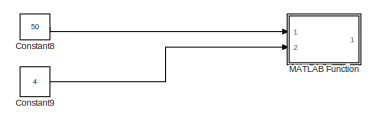
[diagram: root canvas - part 1/8, top center region]
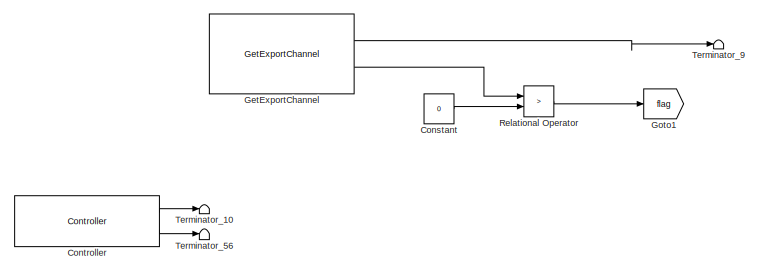
[diagram: root canvas - part 2/8, top left region]
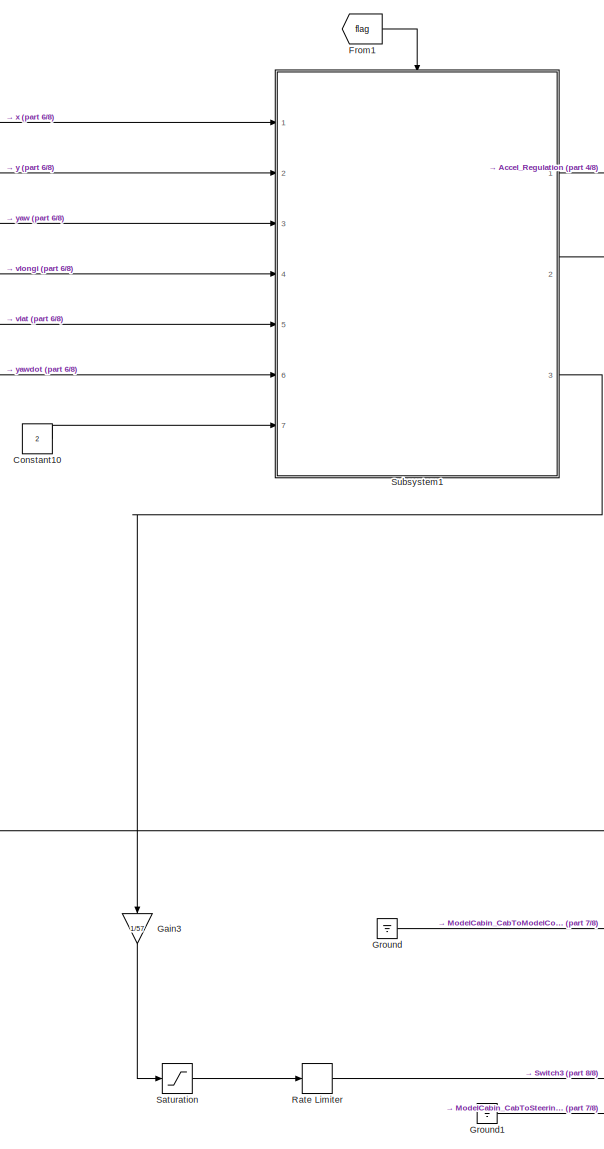
[diagram: root canvas - part 3/8, central region]
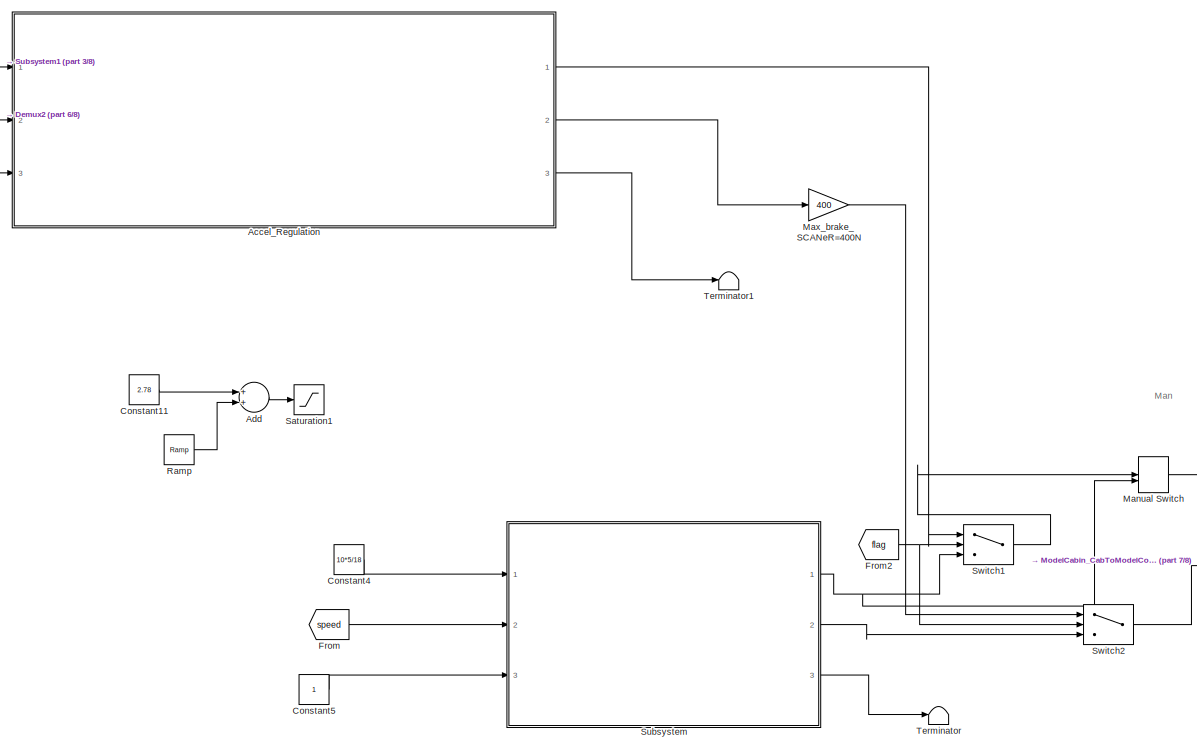
[diagram: root canvas - part 4/8, middle right region]
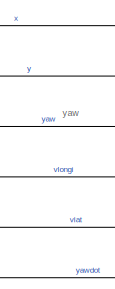
[diagram: root canvas - part 5/8, central region]
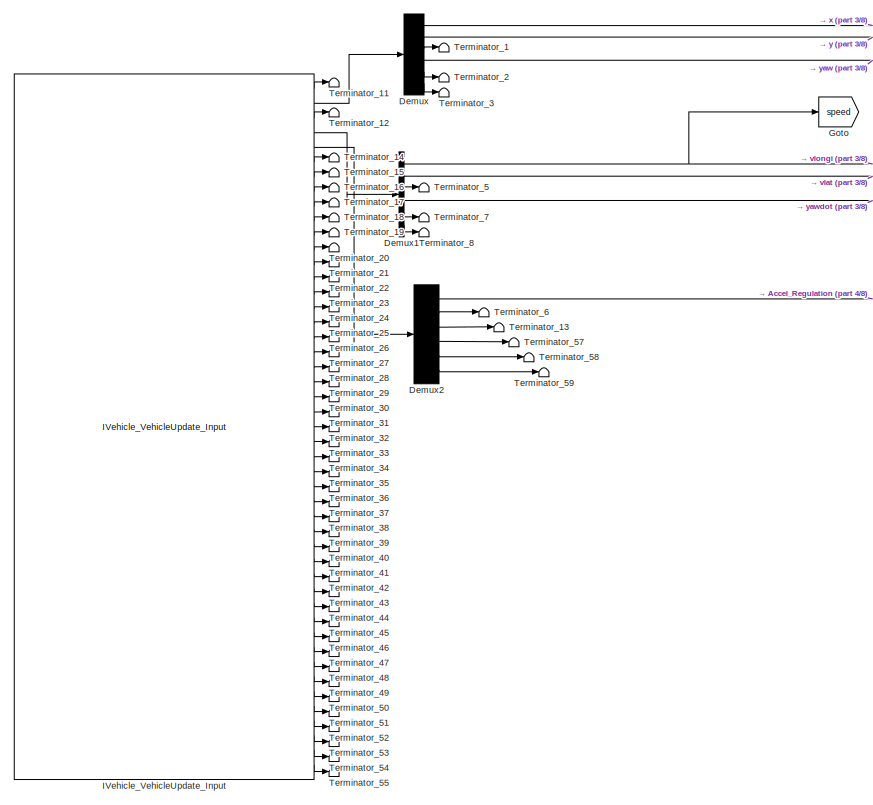
[diagram: root canvas - part 6/8, bottom left region]
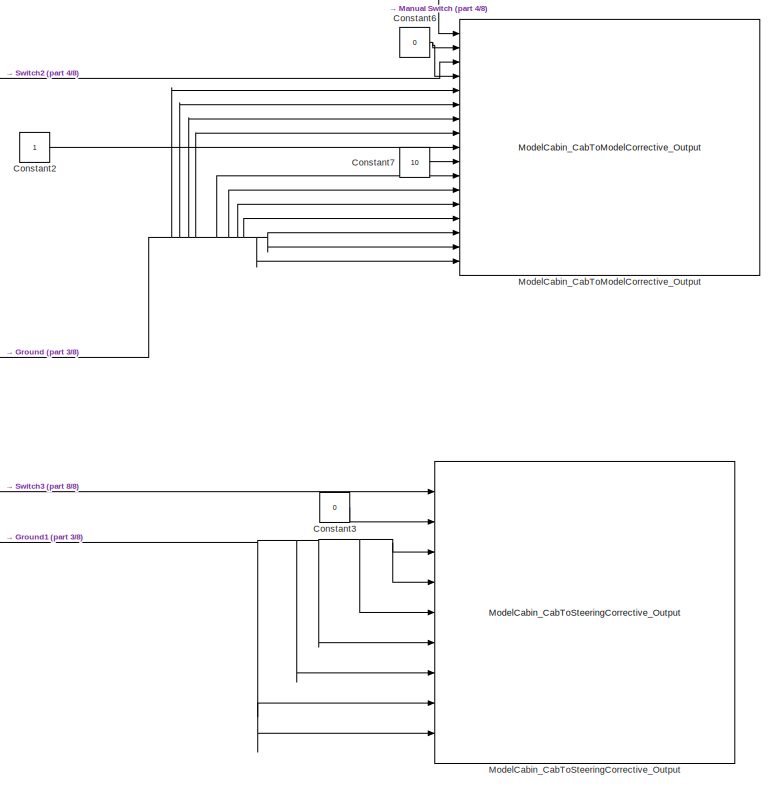
[diagram: root canvas - part 7/8, bottom right region]
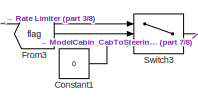
[diagram: root canvas - part 8/8, bottom right region]
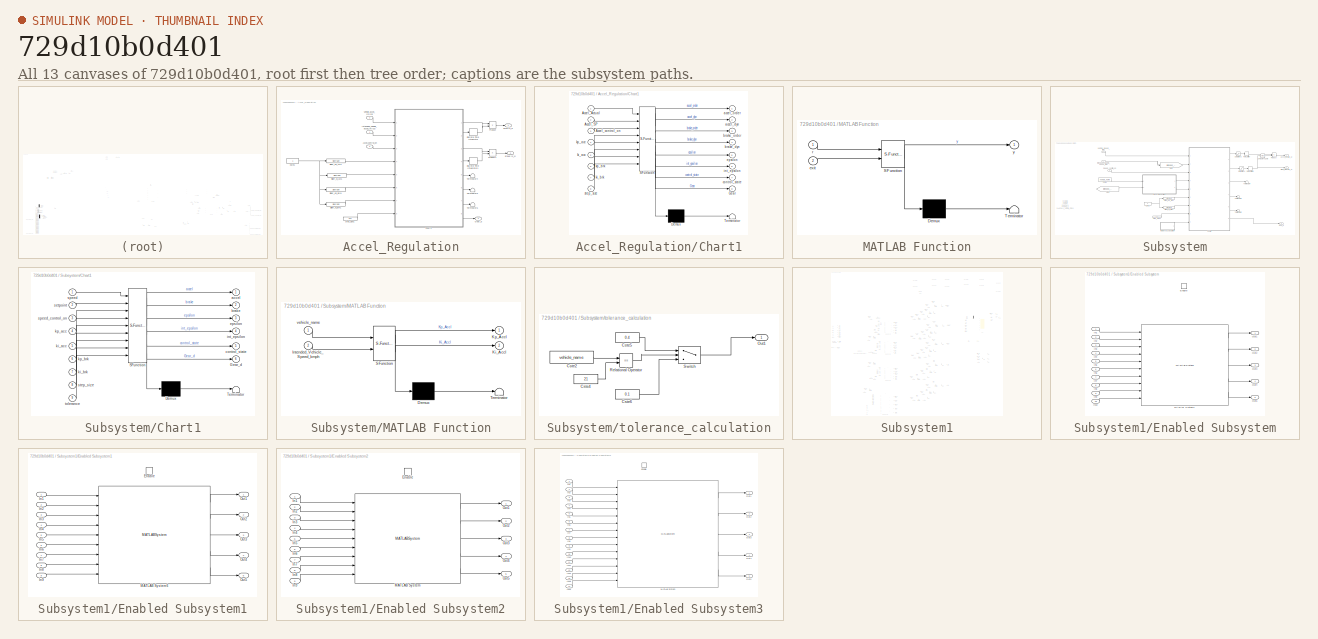
[diagram: thumbnail index - all 13 canvases of the model, root first then tree order]
MODEL slx_729d10b0d401
KIND model
CONFIG AbsTol = auto
CONFIG EnableMultiTasking = off
CONFIG FixedStep = auto
CONFIG MaxStep = auto
CONFIG MinStep = auto
CONFIG RelTol = 1e-3
CONFIG SampleTimeConstraint = Unconstrained
CONFIG Solver = FixedStepAuto
CONFIG SolverName = FixedStepAuto
CONFIG StartTime = 0.0
CONFIG StopTime = inf
BLOCK [SubSystem] Accel_Regulation
  Ports = [3, 3]
  RequestExecContextInheritance = off
  Variant = off
BLOCK [Inport] Accel_Regulation/Accel_control_on
  IconDisplay = Port number
  Port = 3
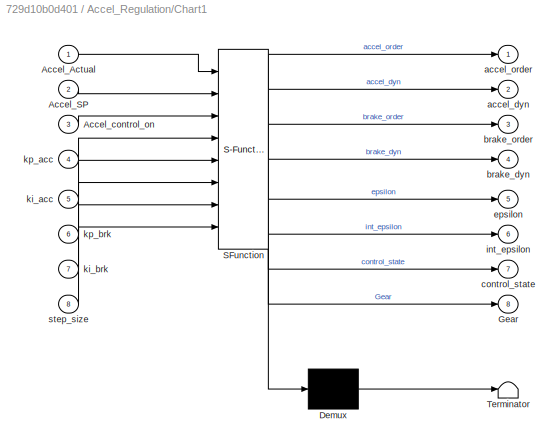
BLOCK [SubSystem] Accel_Regulation/Chart1
  ErrorFcn = Stateflow.Translate.translate
  PermitHierarchicalResolution = ExplicitOnly
  Ports = [8, 8]
  RequestExecContextInheritance = off
  SFBlockType = Chart
  SystemSampleTime = 0.01
  TreatAsAtomicUnit = on
  Variant = off
BLOCK [Demux] Accel_Regulation/Chart1/ Demux 
  Outputs = 1
  Ports = [1, 1]
BLOCK [S-Function] Accel_Regulation/Chart1/ SFunction 
  EnableBusSupport = on
  FunctionName = sf_sfun
  PortCounts = [8 9]
  Ports = [8, 9]
  SFcnIsStateOwnerBlock = off
  SFunctionDeploymentMode = off
  Tag = Stateflow S-Function roundabout_onthego_path 2
BLOCK [Terminator] Accel_Regulation/Chart1/ Terminator 
BLOCK [Inport] Accel_Regulation/Chart1/Accel_Actual
  IconDisplay = Port number
BLOCK [Inport] Accel_Regulation/Chart1/Accel_SP
  IconDisplay = Port number
  Port = 2
BLOCK [Inport] Accel_Regulation/Chart1/Accel_control_on
  IconDisplay = Port number
  Port = 3
BLOCK [Outport] Accel_Regulation/Chart1/Gear
  IconDisplay = Port number
  Port = 8
BLOCK [Outport] Accel_Regulation/Chart1/accel_dyn
  IconDisplay = Port number
  Port = 2
BLOCK [Outport] Accel_Regulation/Chart1/accel_order
  IconDisplay = Port number
BLOCK [Outport] Accel_Regulation/Chart1/brake_dyn
  IconDisplay = Port number
  Port = 4
BLOCK [Outport] Accel_Regulation/Chart1/brake_order
  IconDisplay = Port number
  Port = 3
BLOCK [Outport] Accel_Regulation/Chart1/control_state
  IconDisplay = Port number
  Port = 7
BLOCK [Outport] Accel_Regulation/Chart1/epsilon
  IconDisplay = Port number
  Port = 5
BLOCK [Outport] Accel_Regulation/Chart1/int_epsilon
  IconDisplay = Port number
  Port = 6
BLOCK [Inport] Accel_Regulation/Chart1/ki_acc
  IconDisplay = Port number
  Port = 5
BLOCK [Inport] Accel_Regulation/Chart1/ki_brk
  IconDisplay = Port number
  Port = 7
BLOCK [Inport] Accel_Regulation/Chart1/kp_acc
  IconDisplay = Port number
  Port = 4
BLOCK [Inport] Accel_Regulation/Chart1/kp_brk
  IconDisplay = Port number
  Port = 6
BLOCK [Inport] Accel_Regulation/Chart1/step_size
  IconDisplay = Port number
  Port = 8
BLOCK [Constant] Accel_Regulation/Cste1
  SampleTime = 0.01
BLOCK [DiscreteIntegrator] Accel_Regulation/Discrete-Time Integrator
  ICPrevOutput = DiscIntNeverNeededParam
  ICPrevScaledInput = DiscIntNeverNeededParam
  LimitOutput = on
  LowerSaturationLimit = 0
  Ports = [1, 1]
  SampleTime = -1
  UpperSaturationLimit = 1
BLOCK [DiscreteIntegrator] Accel_Regulation/Discrete-Time Integrator1
  ICPrevOutput = DiscIntNeverNeededParam
  ICPrevScaledInput = DiscIntNeverNeededParam
  LimitOutput = on
  LowerSaturationLimit = 0
  Ports = [1, 1]
  SampleTime = -1
  UpperSaturationLimit = 1
BLOCK [Outport] Accel_Regulation/Gear_d
  IconDisplay = Port number
  Port = 3
BLOCK [Inport] Accel_Regulation/Intended_Vehicle_accel_[m//s2]
  IconDisplay = Port number
BLOCK [Product] Accel_Regulation/Product
  InputSameDT = off
  OutDataTypeStr = Inherit: Inherit via internal rule
  Ports = [2, 1]
  RndMeth = Floor
  SaturateOnIntegerOverflow = off
BLOCK [Product] Accel_Regulation/Product1
  InputSameDT = off
  OutDataTypeStr = Inherit: Inherit via internal rule
  Ports = [2, 1]
  RndMeth = Floor
  SaturateOnIntegerOverflow = off
BLOCK [Reference] Accel_Regulation/Slider_Ki_Acc1  REF=simulink/Math
Operations/Slider
Gain
  Ports = [1, 1]
  SourceBlock = simulink/Math\nOperations/Slider\nGain
  SourceType = Slider Gain
BLOCK [Reference] Accel_Regulation/Slider_Ki_Brk1  REF=simulink/Math
Operations/Slider
Gain
  Ports = [1, 1]
  SourceBlock = simulink/Math\nOperations/Slider\nGain
  SourceType = Slider Gain
BLOCK [Reference] Accel_Regulation/Slider_Kp_Acc1  REF=simulink/Math
Operations/Slider
Gain
  Ports = [1, 1]
  SourceBlock = simulink/Math\nOperations/Slider\nGain
  SourceType = Slider Gain
BLOCK [Reference] Accel_Regulation/Slider_Kp_Brk1  REF=simulink/Math
Operations/Slider
Gain
  Ports = [1, 1]
  SourceBlock = simulink/Math\nOperations/Slider\nGain
  SourceType = Slider Gain
BLOCK [Terminator] Accel_Regulation/Terminator4
BLOCK [Terminator] Accel_Regulation/Terminator5
BLOCK [Terminator] Accel_Regulation/Terminator6
BLOCK [Inport] Accel_Regulation/Vehicle_accel_[m//s2]
  IconDisplay = Port number
  Port = 2
BLOCK [Outport] Accel_Regulation/accel [0_1]
  IconDisplay = Port number
BLOCK [Outport] Accel_Regulation/brake [0_1]
  IconDisplay = Port number
  Port = 2
BLOCK [Constant] Accel_Regulation/step_size1
  SampleTime = 0.01
  Value = 0.01
BLOCK [Sum] Add
  Commented = on
  InputSameDT = off
  OutDataTypeStr = Inherit: Inherit via internal rule
  Ports = [2, 1]
  SaturateOnIntegerOverflow = off
BLOCK [Constant] Constant
  Value = 0
BLOCK [Constant] Constant1
  Value = 0
BLOCK [Constant] Constant10
  Value = 2
BLOCK [Constant] Constant11
  Commented = on
  Value = 2.78
BLOCK [Constant] Constant2
BLOCK [Constant] Constant3
  Value = 0
BLOCK [Constant] Constant4
  Value = 10*5/18
BLOCK [Constant] Constant5
BLOCK [Constant] Constant6
  Value = 0
BLOCK [Constant] Constant7
  Value = 10
BLOCK [Constant] Constant8
  Commented = on
  Value = 50
BLOCK [Constant] Constant9
  Commented = on
  Value = 4
BLOCK [Reference] Controller  REF=SCANeR_API/Controller
  Ports = [0, 2]
  Priority = 1
  SourceBlock = SCANeR_API/Controller
BLOCK [Demux] Demux
  DisplayOption = bar
  Outputs = 6
  Ports = [1, 6]
BLOCK [Demux] Demux1
  DisplayOption = bar
  Outputs = 6
  Ports = [1, 6]
BLOCK [Demux] Demux2
  DisplayOption = bar
  Outputs = 6
  Ports = [1, 6]
BLOCK [From] From
  GotoTag = speed
BLOCK [From] From1
  GotoTag = flag
BLOCK [From] From2
  Commented = on
  GotoTag = flag
BLOCK [From] From3
  GotoTag = flag
BLOCK [Gain] Gain3
  Gain = 1/57
  OutDataTypeStr = Inherit: Inherit via internal rule
  ParamDataTypeStr = Inherit: Inherit via internal rule
  SaturateOnIntegerOverflow = off
BLOCK [Reference] GetExportChannel  REF=SCANeR_API/GetExportChannel
  Ports = [0, 2]
  Priority = 0
  SourceBlock = SCANeR_API/GetExportChannel
BLOCK [Goto] Goto
  GotoTag = speed
BLOCK [Goto] Goto1
  GotoTag = flag
BLOCK [Ground] Ground
BLOCK [Ground] Ground1
BLOCK [Reference] IVehicle_VehicleUpdate_Input  REF=SCANeR_API/Network inputs/IVehicle/IVehicle_VehicleUpdate_Input
  Ports = [0, 47]
  Priority = 2
  SourceBlock = SCANeR_API/Network inputs/IVehicle/IVehicle_VehicleUpdate_Input
  SourceType = IVehicle_VehicleUpdate_Input
BLOCK [SubSystem] MATLAB Function
  Commented = on
  ErrorFcn = Stateflow.Translate.translate
  PermitHierarchicalResolution = ExplicitOnly
  Ports = [2, 1]
  RequestExecContextInheritance = off
  SFBlockType = MATLAB Function
  TreatAsAtomicUnit = on
  Variant = off
BLOCK [Demux] MATLAB Function/ Demux 
  Outputs = 1
  Ports = [1, 1]
BLOCK [S-Function] MATLAB Function/ SFunction 
  EnableBusSupport = on
  FunctionName = sf_sfun
  PortCounts = [2 2]
  Ports = [2, 2]
  SFcnIsStateOwnerBlock = off
  SFunctionDeploymentMode = off
  Tag = Stateflow S-Function roundabout_onthego_path 4
BLOCK [Terminator] MATLAB Function/ Terminator 
BLOCK [Inport] MATLAB Function/exit
  IconDisplay = Port number
  Port = 2
BLOCK [Inport] MATLAB Function/r
  IconDisplay = Port number
BLOCK [Outport] MATLAB Function/y
  IconDisplay = Port number
BLOCK [ManualSwitch] Manual Switch
  CurrentSetting = 0
BLOCK [Gain] Max_brake_SCANeR=400N
  Gain = 400
  OutDataTypeStr = Inherit: Inherit via internal rule
  ParamDataTypeStr = Inherit: Inherit via internal rule
  SaturateOnIntegerOverflow = off
BLOCK [Reference] ModelCabin_CabToModelCorrective_Output  REF=SCANeR_API/SHM outputs/ModelCabin/ModelCabin_CabToModelCorrective_Output
  Ports = [17]
  Priority = 2
  SourceBlock = SCANeR_API/SHM outputs/ModelCabin/ModelCabin_CabToModelCorrective_Output
  SourceType = ModelCabin_CabToModelCorrective_Output
BLOCK [Reference] ModelCabin_CabToSteeringCorrective_Output  REF=SCANeR_API/SHM outputs/ModelCabin/ModelCabin_CabToSteeringCorrective_Output
  Ports = [9]
  Priority = 2
  SourceBlock = SCANeR_API/SHM outputs/ModelCabin/ModelCabin_CabToSteeringCorrective_Output
  SourceType = ModelCabin_CabToSteeringCorrective_Output
BLOCK [Reference] Ramp  REF=simulink/Sources/Ramp
  Commented = on
  Ports = [0, 1]
  SourceBlock = simulink/Sources/Ramp
  SourceType = Ramp
BLOCK [RateLimiter] Rate Limiter
  FallingSlewLimit = -10
  RisingSlewLimit = 10
  SampleTimeMode = inherited
BLOCK [RelationalOperator] Relational Operator
  InputSameDT = off
  Operator = >
  OutDataTypeStr = boolean
  Ports = [2, 1]
  RndMeth = Simplest
BLOCK [Saturate] Saturation
  InputPortMap = u0
  LowerLimit = -10
  Ports = [1, 1]
  UpperLimit = 10
BLOCK [Saturate] Saturation1
  Commented = on
  InputPortMap = u0
  LowerLimit = 0
  Ports = [1, 1]
  UpperLimit = 75/18
BLOCK [SubSystem] Subsystem
  Ports = [3, 3]
  RequestExecContextInheritance = off
  Variant = off
BLOCK [SubSystem] Subsystem/Chart1
  ErrorFcn = Stateflow.Translate.translate
  PermitHierarchicalResolution = ExplicitOnly
  Ports = [9, 6]
  RequestExecContextInheritance = off
  SFBlockType = Chart
  SystemSampleTime = 0.01
  TreatAsAtomicUnit = on
  Variant = off
BLOCK [Demux] Subsystem/Chart1/ Demux 
  Outputs = 1
  Ports = [1, 1]
BLOCK [S-Function] Subsystem/Chart1/ SFunction 
  EnableBusSupport = on
  FunctionName = sf_sfun
  PortCounts = [9 7]
  Ports = [9, 7]
  SFcnIsStateOwnerBlock = off
  SFunctionDeploymentMode = off
  Tag = Stateflow S-Function roundabout_onthego_path 5
BLOCK [Terminator] Subsystem/Chart1/ Terminator 
BLOCK [Outport] Subsystem/Chart1/Gear_d
  IconDisplay = Port number
  Port = 6
BLOCK [Outport] Subsystem/Chart1/accel
  IconDisplay = Port number
BLOCK [Outport] Subsystem/Chart1/brake
  IconDisplay = Port number
  Port = 2
BLOCK [Outport] Subsystem/Chart1/control_state
  IconDisplay = Port number
  Port = 5
BLOCK [Outport] Subsystem/Chart1/epsilon
  IconDisplay = Port number
  Port = 3
BLOCK [Outport] Subsystem/Chart1/int_epsilon
  IconDisplay = Port number
  Port = 4
BLOCK [Inport] Subsystem/Chart1/ki_acc
  IconDisplay = Port number
  Port = 5
BLOCK [Inport] Subsystem/Chart1/ki_brk
  IconDisplay = Port number
  Port = 7
BLOCK [Inport] Subsystem/Chart1/kp_acc
  IconDisplay = Port number
  Port = 4
BLOCK [Inport] Subsystem/Chart1/kp_brk
  IconDisplay = Port number
  Port = 6
BLOCK [Inport] Subsystem/Chart1/setpoint
  IconDisplay = Port number
  Port = 2
BLOCK [Inport] Subsystem/Chart1/speed
  IconDisplay = Port number
BLOCK [Inport] Subsystem/Chart1/speed_control_on
  IconDisplay = Port number
  Port = 3
BLOCK [Inport] Subsystem/Chart1/step_size
  IconDisplay = Port number
  Port = 8
BLOCK [Inport] Subsystem/Chart1/tolerance
  IconDisplay = Port number
  Port = 9
BLOCK [Reference] Subsystem/Compare To Zero  REF=simulink/Logic and Bit
Operations/Compare
To Zero
  Ports = [1, 1]
  SourceBlock = simulink/Logic and Bit\nOperations/Compare\nTo Zero
  SourceType = Compare To Zero
BLOCK [Constant] Subsystem/Cste1
  SampleTime = 0.01
BLOCK [Constant] Subsystem/Cste3
  SampleTime = 0.01
  Value = vehicle_name
BLOCK [Outport] Subsystem/Driver_Brake [0_1]
  IconDisplay = Port number
  Port = 2
BLOCK [From] Subsystem/From
  GotoTag = Intended_Vehicle_Speed_kmph
BLOCK [Outport] Subsystem/Gear_d
  IconDisplay = Port number
  Port = 3
BLOCK [Goto] Subsystem/Goto
  GotoTag = Intended_Vehicle_Speed_kmph
BLOCK [Inport] Subsystem/Intended_Vehicle_Speed_[m//s]
  IconDisplay = Port number
BLOCK [SubSystem] Subsystem/MATLAB Function
  ErrorFcn = Stateflow.Translate.translate
  PermitHierarchicalResolution = ExplicitOnly
  Ports = [2, 2]
  RequestExecContextInheritance = off
  SFBlockType = MATLAB Function
  TreatAsAtomicUnit = on
  Variant = off
BLOCK [Demux] Subsystem/MATLAB Function/ Demux 
  Outputs = 1
  Ports = [1, 1]
BLOCK [S-Function] Subsystem/MATLAB Function/ SFunction 
  EnableBusSupport = on
  FunctionName = sf_sfun
  PortCounts = [2 3]
  Ports = [2, 3]
  SFcnIsStateOwnerBlock = off
  SFunctionDeploymentMode = off
  Tag = Stateflow S-Function roundabout_onthego_path 6
BLOCK [Terminator] Subsystem/MATLAB Function/ Terminator 
BLOCK [Inport] Subsystem/MATLAB Function/Intended_Vehicle_Speed_kmph
  IconDisplay = Port number
  Port = 2
BLOCK [Outport] Subsystem/MATLAB Function/Ki_Accl
  IconDisplay = Port number
  Port = 2
BLOCK [Outport] Subsystem/MATLAB Function/Kp_Accl
  IconDisplay = Port number
BLOCK [Inport] Subsystem/MATLAB Function/vehicle_name
  IconDisplay = Port number
BLOCK [Product] Subsystem/Product
  InputSameDT = off
  OutDataTypeStr = Inherit: Inherit via internal rule
  Ports = [2, 1]
  RndMeth = Floor
  SaturateOnIntegerOverflow = off
BLOCK [RateLimiter] Subsystem/Rate Limiter
  Commented = through
  RisingSlewLimit = 0.5
  SampleTimeMode = inherited
BLOCK [RateLimiter] Subsystem/Rate Limiter1
  RisingSlewLimit = 0.2
  SampleTimeMode = inherited
BLOCK [Saturate] Subsystem/Saturation2
  InputPortMap = u0
  LowerLimit = 0
  Ports = [1, 1]
  SampleTime = 0.01
  UpperLimit = 1
BLOCK [Saturate] Subsystem/Saturation4
  InputPortMap = u0
  LowerLimit = 0
  Ports = [1, 1]
  SampleTime = 0.01
  UpperLimit = 1
BLOCK [Reference] Subsystem/Slider_Ki_Brk1  REF=simulink/Math
Operations/Slider
Gain
  Ports = [1, 1]
  SourceBlock = simulink/Math\nOperations/Slider\nGain
  SourceType = Slider Gain
BLOCK [Reference] Subsystem/Slider_Kp_Brk1  REF=simulink/Math
Operations/Slider
Gain
  Ports = [1, 1]
  SourceBlock = simulink/Math\nOperations/Slider\nGain
  SourceType = Slider Gain
BLOCK [Inport] Subsystem/Speed_control_on
  IconDisplay = Port number
  Port = 3
BLOCK [Terminator] Subsystem/Terminator4
BLOCK [Terminator] Subsystem/Terminator5
BLOCK [Terminator] Subsystem/Terminator6
BLOCK [Inport] Subsystem/Vehicle_Speed_[m//s]
  IconDisplay = Port number
  Port = 2
BLOCK [Outport] Subsystem/accel_regul [0_1]
  IconDisplay = Port number
BLOCK [Constant] Subsystem/step_size1
  SampleTime = 0.01
  Value = 0.01
BLOCK [SubSystem] Subsystem/tolerance_calculation
  Ports = [0, 1]
  RequestExecContextInheritance = off
  Variant = off
BLOCK [Constant] Subsystem/tolerance_calculation/Cste2
  SampleTime = 0.01
  Value = vehicle_name
BLOCK [Constant] Subsystem/tolerance_calculation/Cste4
  SampleTime = 0.01
  Value = 21
BLOCK [Constant] Subsystem/tolerance_calculation/Cste5
  SampleTime = 0.01
  Value = 0.4
BLOCK [Constant] Subsystem/tolerance_calculation/Cste6
  SampleTime = 0.01
  Value = 0.1
BLOCK [Outport] Subsystem/tolerance_calculation/Out1
  IconDisplay = Port number
BLOCK [RelationalOperator] Subsystem/tolerance_calculation/Relational Operator
  InputSameDT = off
  Operator = ==
  OutDataTypeStr = boolean
  Ports = [2, 1]
  RndMeth = Simplest
BLOCK [Switch] Subsystem/tolerance_calculation/Switch
  Criteria = u2 > Threshold
  InputSameDT = off
  SaturateOnIntegerOverflow = off
  Threshold = 0.5
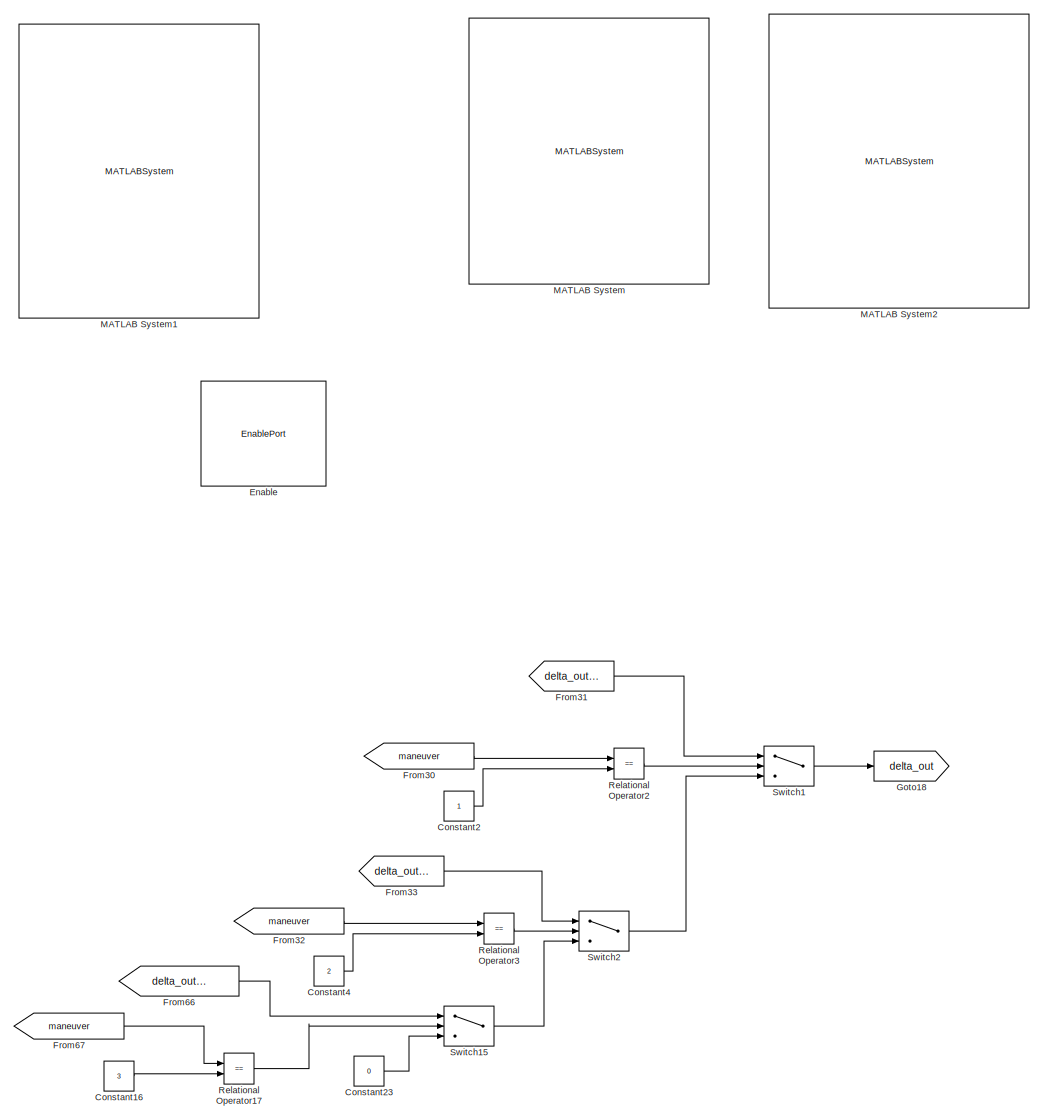
[diagram: Subsystem1 - part 1/9, top center region]
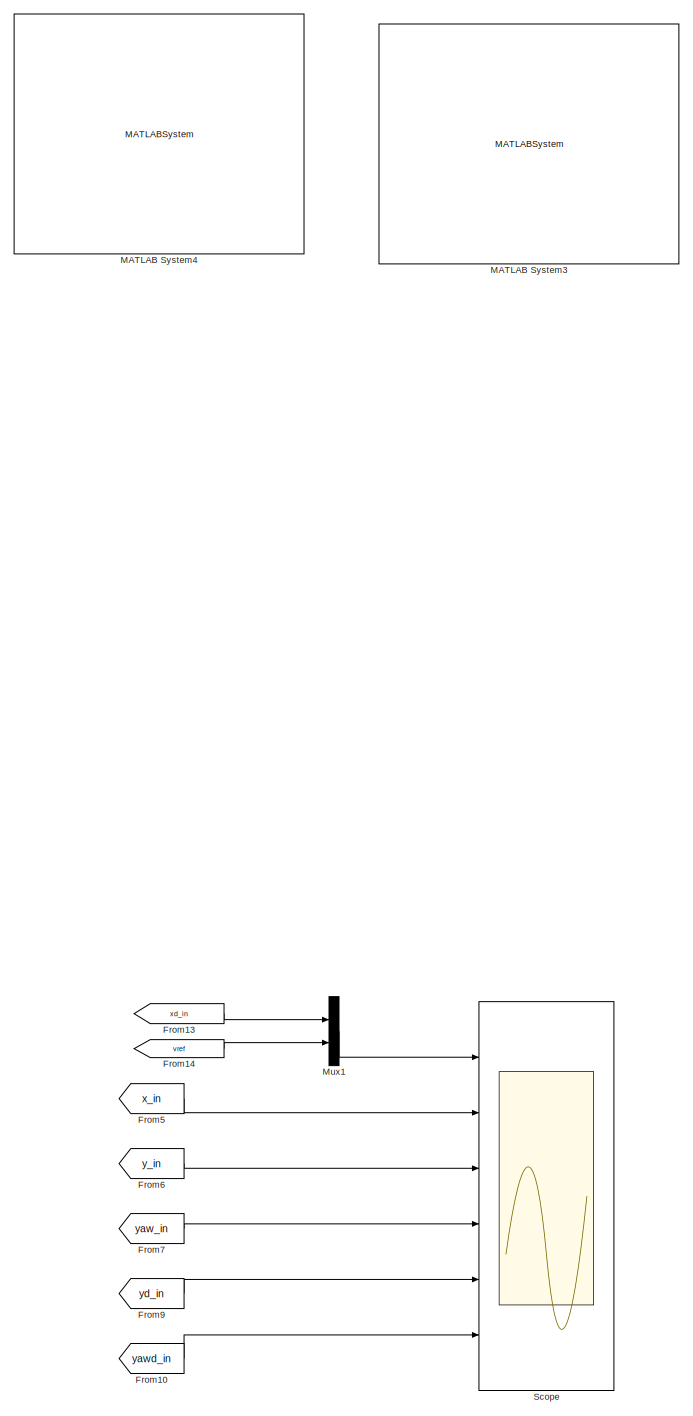
[diagram: Subsystem1 - part 2/9, top right region]
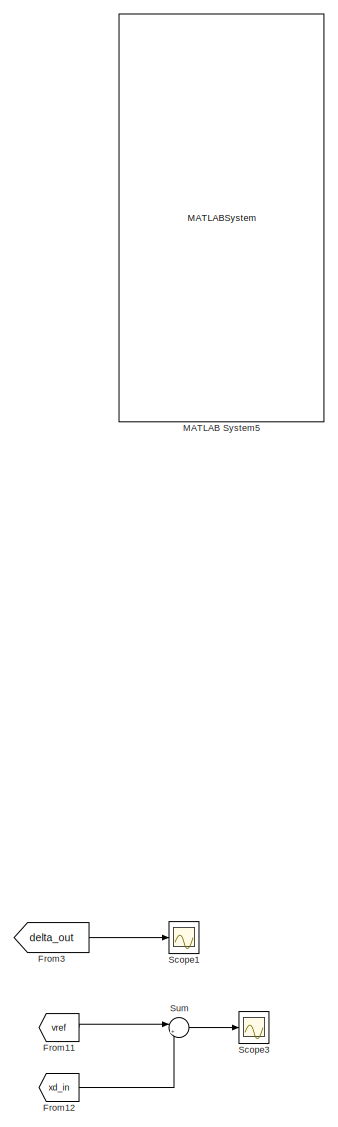
[diagram: Subsystem1 - part 3/9, top right region]
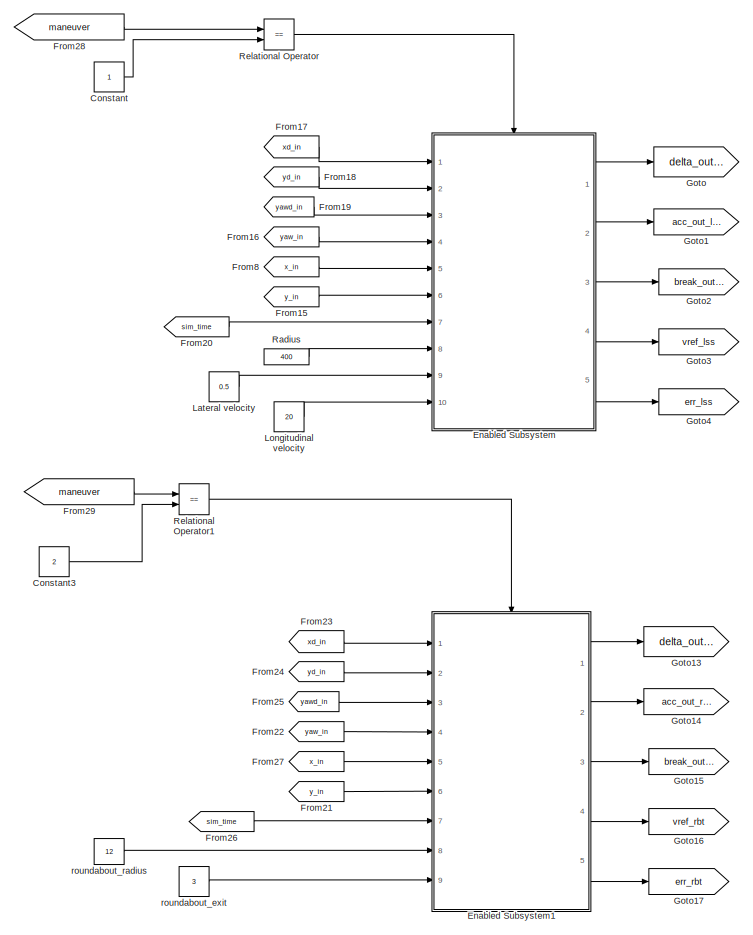
[diagram: Subsystem1 - part 4/9, middle left region]
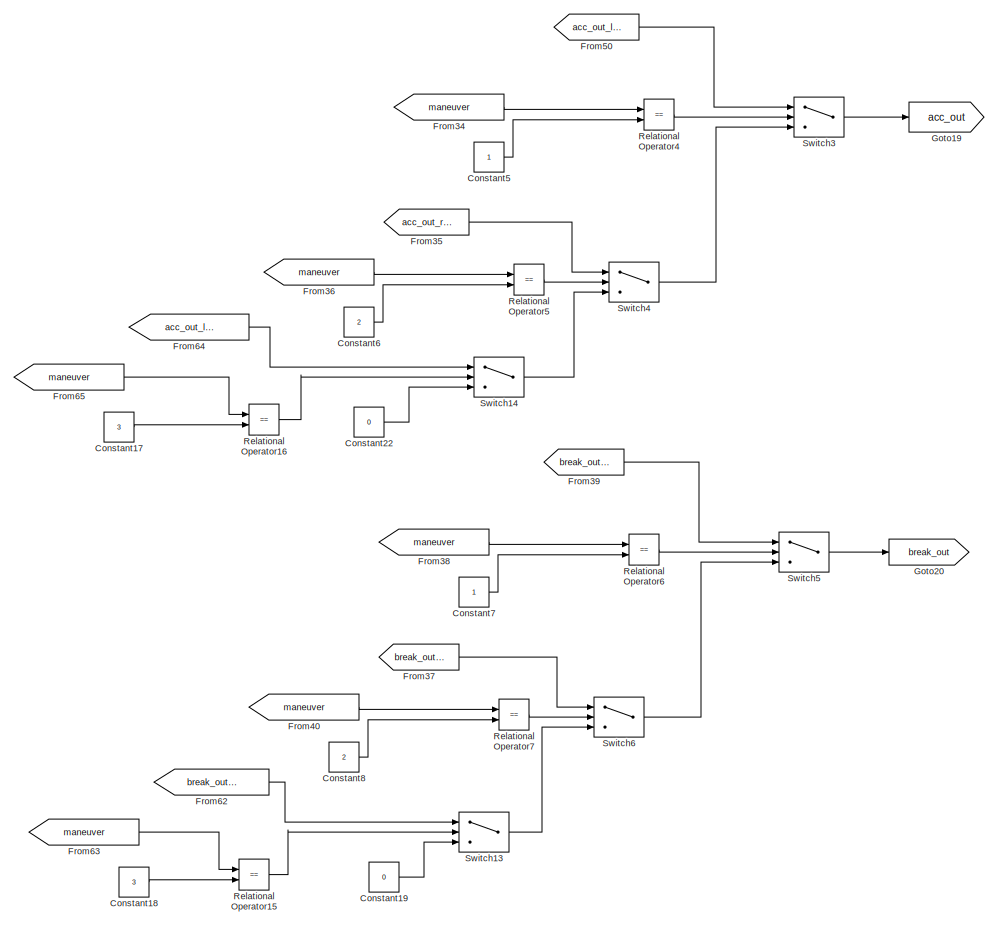
[diagram: Subsystem1 - part 5/9, central region]
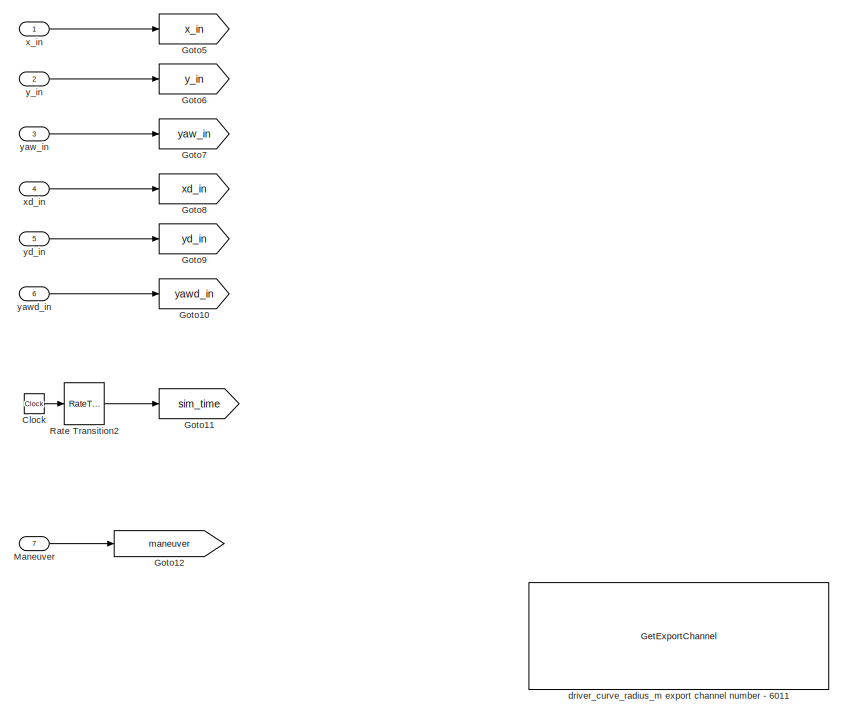
[diagram: Subsystem1 - part 6/9, middle left region]
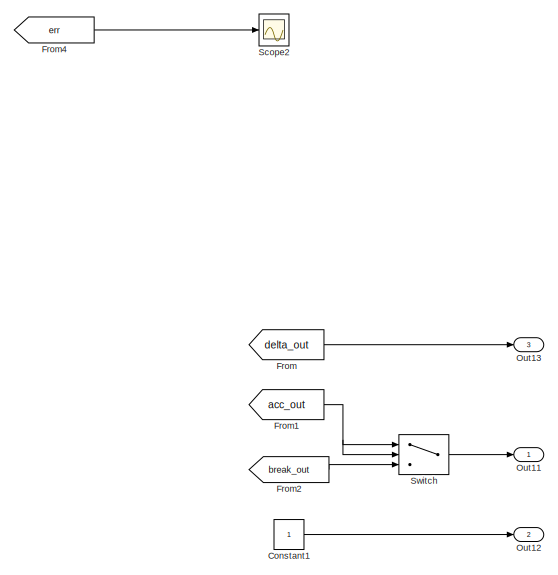
[diagram: Subsystem1 - part 7/9, middle right region]
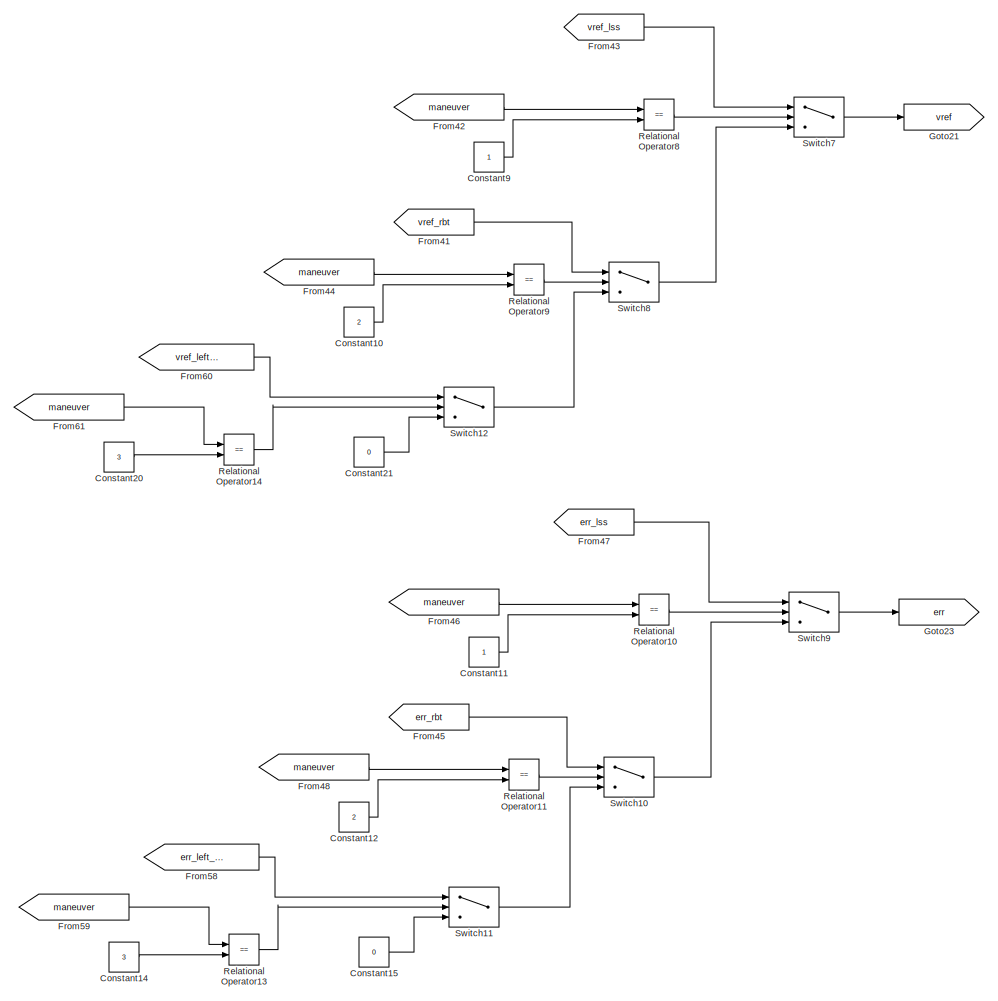
[diagram: Subsystem1 - part 8/9, bottom center region]
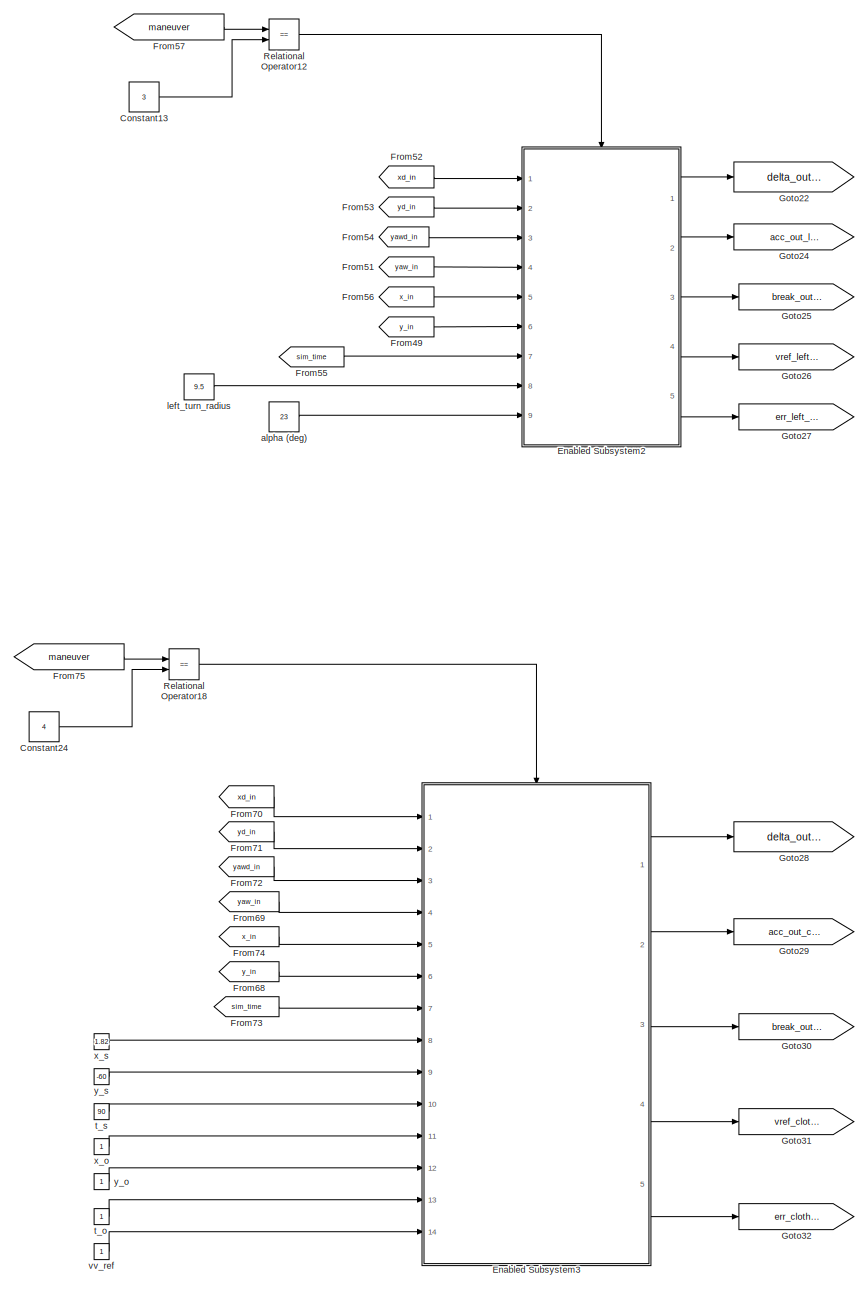
[diagram: Subsystem1 - part 9/9, bottom left region]
BLOCK [SubSystem] Subsystem1
  Ports = [7, 3, 1]
  RequestExecContextInheritance = off
  Variant = off
BLOCK [Clock] Subsystem1/Clock
BLOCK [Constant] Subsystem1/Constant
BLOCK [Constant] Subsystem1/Constant1
BLOCK [Constant] Subsystem1/Constant10
  Value = 2
BLOCK [Constant] Subsystem1/Constant11
BLOCK [Constant] Subsystem1/Constant12
  Value = 2
BLOCK [Constant] Subsystem1/Constant13
  Value = 3
BLOCK [Constant] Subsystem1/Constant14
  Value = 3
BLOCK [Constant] Subsystem1/Constant15
  Value = 0
BLOCK [Constant] Subsystem1/Constant16
  Value = 3
BLOCK [Constant] Subsystem1/Constant17
  Value = 3
BLOCK [Constant] Subsystem1/Constant18
  Value = 3
BLOCK [Constant] Subsystem1/Constant19
  Value = 0
BLOCK [Constant] Subsystem1/Constant2
BLOCK [Constant] Subsystem1/Constant20
  Value = 3
BLOCK [Constant] Subsystem1/Constant21
  Value = 0
BLOCK [Constant] Subsystem1/Constant22
  Value = 0
BLOCK [Constant] Subsystem1/Constant23
  Value = 0
BLOCK [Constant] Subsystem1/Constant24
  Commented = on
  Value = 4
BLOCK [Constant] Subsystem1/Constant3
  Value = 2
BLOCK [Constant] Subsystem1/Constant4
  Value = 2
BLOCK [Constant] Subsystem1/Constant5
BLOCK [Constant] Subsystem1/Constant6
  Value = 2
BLOCK [Constant] Subsystem1/Constant7
BLOCK [Constant] Subsystem1/Constant8
  Value = 2
BLOCK [Constant] Subsystem1/Constant9
BLOCK [EnablePort] Subsystem1/Enable
  Ports = []
  PropagateVarSize = During execution
BLOCK [SubSystem] Subsystem1/Enabled Subsystem
  Ports = [10, 5, 1]
  RequestExecContextInheritance = off
  TreatAsAtomicUnit = on
  Variant = off
BLOCK [EnablePort] Subsystem1/Enabled Subsystem/Enable
  Ports = []
BLOCK [Inport] Subsystem1/Enabled Subsystem/In1
  IconDisplay = Port number
BLOCK [Inport] Subsystem1/Enabled Subsystem/In10
  IconDisplay = Port number
  Port = 10
BLOCK [Inport] Subsystem1/Enabled Subsystem/In2
  IconDisplay = Port number
  Port = 2
BLOCK [Inport] Subsystem1/Enabled Subsystem/In3
  IconDisplay = Port number
  Port = 3
BLOCK [Inport] Subsystem1/Enabled Subsystem/In4
  IconDisplay = Port number
  Port = 4
BLOCK [Inport] Subsystem1/Enabled Subsystem/In5
  IconDisplay = Port number
  Port = 5
BLOCK [Inport] Subsystem1/Enabled Subsystem/In6
  IconDisplay = Port number
  Port = 6
BLOCK [Inport] Subsystem1/Enabled Subsystem/In7
  IconDisplay = Port number
  Port = 7
BLOCK [Inport] Subsystem1/Enabled Subsystem/In8
  IconDisplay = Port number
  Port = 8
BLOCK [Inport] Subsystem1/Enabled Subsystem/In9
  IconDisplay = Port number
  Port = 9
BLOCK [MATLABSystem] Subsystem1/Enabled Subsystem/MATLAB System7
  MaskDisplay = disp('casadi_block_MPC_LSS_onthego');\nport_label('input',1,'xd_in');\nport_label('input',2,'yd_in');\nport_label('input',3,'yawd_in');\nport_label('input',4,'yaw_in');\nport_label('input',5,'x_in');\nport_label('input',6,'y_in');\nport_label('input',7,'t');\nport_label('input',8,'R');\nport_label('input',9,'vlat_ref');\nport_label('input',10,'vlongi_ref');\nport_label('output',1,'delta_out');\nport_label('ou...<+116ch>
  MaskType = casadi_block_MPC_LSS_onthego
  Ports = [10, 5]
  SimulateUsing = Interpreted execution
  System = casadi_block_MPC_LSS_onthego
BLOCK [Outport] Subsystem1/Enabled Subsystem/Out1
  IconDisplay = Port number
BLOCK [Outport] Subsystem1/Enabled Subsystem/Out2
  IconDisplay = Port number
  Port = 2
BLOCK [Outport] Subsystem1/Enabled Subsystem/Out3
  IconDisplay = Port number
  Port = 3
BLOCK [Outport] Subsystem1/Enabled Subsystem/Out4
  IconDisplay = Port number
  Port = 4
BLOCK [Outport] Subsystem1/Enabled Subsystem/Out5
  IconDisplay = Port number
  Port = 5
BLOCK [SubSystem] Subsystem1/Enabled Subsystem1
  Ports = [9, 5, 1]
  RequestExecContextInheritance = off
  TreatAsAtomicUnit = on
  Variant = off
BLOCK [EnablePort] Subsystem1/Enabled Subsystem1/Enable
  Ports = []
BLOCK [Inport] Subsystem1/Enabled Subsystem1/In1
  IconDisplay = Port number
BLOCK [Inport] Subsystem1/Enabled Subsystem1/In2
  IconDisplay = Port number
  Port = 2
BLOCK [Inport] Subsystem1/Enabled Subsystem1/In3
  IconDisplay = Port number
  Port = 3
BLOCK [Inport] Subsystem1/Enabled Subsystem1/In4
  IconDisplay = Port number
  Port = 4
BLOCK [Inport] Subsystem1/Enabled Subsystem1/In5
  IconDisplay = Port number
  Port = 5
BLOCK [Inport] Subsystem1/Enabled Subsystem1/In6
  IconDisplay = Port number
  Port = 6
BLOCK [Inport] Subsystem1/Enabled Subsystem1/In7
  IconDisplay = Port number
  Port = 7
BLOCK [Inport] Subsystem1/Enabled Subsystem1/In8
  IconDisplay = Port number
  Port = 8
BLOCK [Inport] Subsystem1/Enabled Subsystem1/In9
  IconDisplay = Port number
  Port = 9
BLOCK [MATLABSystem] Subsystem1/Enabled Subsystem1/MATLAB System6
  MaskDisplay = disp('casadi_block_MPCtry_5');\nport_label('input',1,'xd_in');\nport_label('input',2,'yd_in');\nport_label('input',3,'yawd_in');\nport_label('input',4,'yaw_in');\nport_label('input',5,'x_in');\nport_label('input',6,'y_in');\nport_label('input',7,'t');\nport_label('input',8,'r');\nport_label('input',9,'ex');\nport_label('output',1,'delta_out');\nport_label('output',2,'acc_out');\nport_label('output',3,'break_o...<+66ch>
  MaskType = casadi_block_MPCtry_5
  Ports = [9, 5]
  SimulateUsing = Interpreted execution
  System = casadi_block_MPCtry_5
BLOCK [Outport] Subsystem1/Enabled Subsystem1/Out1
  IconDisplay = Port number
BLOCK [Outport] Subsystem1/Enabled Subsystem1/Out2
  IconDisplay = Port number
  Port = 2
BLOCK [Outport] Subsystem1/Enabled Subsystem1/Out3
  IconDisplay = Port number
  Port = 3
BLOCK [Outport] Subsystem1/Enabled Subsystem1/Out4
  IconDisplay = Port number
  Port = 4
BLOCK [Outport] Subsystem1/Enabled Subsystem1/Out5
  IconDisplay = Port number
  Port = 5
BLOCK [SubSystem] Subsystem1/Enabled Subsystem2
  Ports = [9, 5, 1]
  RequestExecContextInheritance = off
  TreatAsAtomicUnit = on
  Variant = off
BLOCK [EnablePort] Subsystem1/Enabled Subsystem2/Enable
  Ports = []
BLOCK [Inport] Subsystem1/Enabled Subsystem2/In1
  IconDisplay = Port number
BLOCK [Inport] Subsystem1/Enabled Subsystem2/In2
  IconDisplay = Port number
  Port = 2
BLOCK [Inport] Subsystem1/Enabled Subsystem2/In3
  IconDisplay = Port number
  Port = 3
BLOCK [Inport] Subsystem1/Enabled Subsystem2/In4
  IconDisplay = Port number
  Port = 4
BLOCK [Inport] Subsystem1/Enabled Subsystem2/In5
  IconDisplay = Port number
  Port = 5
BLOCK [Inport] Subsystem1/Enabled Subsystem2/In6
  IconDisplay = Port number
  Port = 6
BLOCK [Inport] Subsystem1/Enabled Subsystem2/In7
  IconDisplay = Port number
  Port = 7
BLOCK [Inport] Subsystem1/Enabled Subsystem2/In8
  IconDisplay = Port number
  Port = 8
BLOCK [Inport] Subsystem1/Enabled Subsystem2/In9
  IconDisplay = Port number
  Port = 9
BLOCK [MATLABSystem] Subsystem1/Enabled Subsystem2/MATLAB System
  MaskDisplay = disp('casadi_block_MPC_left_turn_onthego');\nport_label('input',1,'xd_in');\nport_label('input',2,'yd_in');\nport_label('input',3,'yawd_in');\nport_label('input',4,'yaw_in');\nport_label('input',5,'x_in');\nport_label('input',6,'y_in');\nport_label('input',7,'t');\nport_label('input',8,'r');\nport_label('input',9,'alpha');\nport_label('output',1,'delta_out');\nport_label('output',2,'acc_out');\nport_label('ou...<+82ch>
  MaskType = casadi_block_MPC_left_turn_onthego
  Ports = [9, 5]
  SimulateUsing = Interpreted execution
  System = casadi_block_MPC_left_turn_onthego
BLOCK [Outport] Subsystem1/Enabled Subsystem2/Out1
  IconDisplay = Port number
BLOCK [Outport] Subsystem1/Enabled Subsystem2/Out2
  IconDisplay = Port number
  Port = 2
BLOCK [Outport] Subsystem1/Enabled Subsystem2/Out3
  IconDisplay = Port number
  Port = 3
BLOCK [Outport] Subsystem1/Enabled Subsystem2/Out4
  IconDisplay = Port number
  Port = 4
BLOCK [Outport] Subsystem1/Enabled Subsystem2/Out5
  IconDisplay = Port number
  Port = 5
BLOCK [SubSystem] Subsystem1/Enabled Subsystem3
  Commented = on
  Ports = [14, 5, 1]
  RequestExecContextInheritance = off
  TreatAsAtomicUnit = on
  Variant = off
BLOCK [EnablePort] Subsystem1/Enabled Subsystem3/Enable
  Ports = []
BLOCK [Inport] Subsystem1/Enabled Subsystem3/In1
  IconDisplay = Port number
BLOCK [Inport] Subsystem1/Enabled Subsystem3/In10
  IconDisplay = Port number
  Port = 10
BLOCK [Inport] Subsystem1/Enabled Subsystem3/In11
  IconDisplay = Port number
  Port = 11
BLOCK [Inport] Subsystem1/Enabled Subsystem3/In12
  IconDisplay = Port number
  Port = 12
BLOCK [Inport] Subsystem1/Enabled Subsystem3/In13
  IconDisplay = Port number
  Port = 13
BLOCK [Inport] Subsystem1/Enabled Subsystem3/In14
  IconDisplay = Port number
  Port = 14
BLOCK [Inport] Subsystem1/Enabled Subsystem3/In2
  IconDisplay = Port number
  Port = 2
BLOCK [Inport] Subsystem1/Enabled Subsystem3/In3
  IconDisplay = Port number
  Port = 3
BLOCK [Inport] Subsystem1/Enabled Subsystem3/In4
  IconDisplay = Port number
  Port = 4
BLOCK [Inport] Subsystem1/Enabled Subsystem3/In5
  IconDisplay = Port number
  Port = 5
BLOCK [Inport] Subsystem1/Enabled Subsystem3/In6
  IconDisplay = Port number
  Port = 6
BLOCK [Inport] Subsystem1/Enabled Subsystem3/In7
  IconDisplay = Port number
  Port = 7
BLOCK [Inport] Subsystem1/Enabled Subsystem3/In8
  IconDisplay = Port number
  Port = 8
BLOCK [Inport] Subsystem1/Enabled Subsystem3/In9
  IconDisplay = Port number
  Port = 9
BLOCK [MATLABSystem] Subsystem1/Enabled Subsystem3/MATLAB System
  MaskDisplay = disp('casadi_block_MPC_track_clothoid_onthego');\nport_label('input',1,'xd_in');\nport_label('input',2,'yd_in');\nport_label('input',3,'yawd_in');\nport_label('input',4,'yaw_in');\nport_label('input',5,'x_in');\nport_label('input',6,'y_in');\nport_label('input',7,'t');\nport_label('input',8,'x_s_in');\nport_label('input',9,'y_s_in');\nport_label('input',10,'t_s_in');\nport_label('input',11,'x_s_out');\nport_l...<+261ch>
  MaskType = casadi_block_MPC_track_clothoid_onthego
  Ports = [14, 5]
  SimulateUsing = Interpreted execution
  System = casadi_block_MPC_track_clothoid_onthego
BLOCK [Outport] Subsystem1/Enabled Subsystem3/Out1
  IconDisplay = Port number
BLOCK [Outport] Subsystem1/Enabled Subsystem3/Out2
  IconDisplay = Port number
  Port = 2
BLOCK [Outport] Subsystem1/Enabled Subsystem3/Out3
  IconDisplay = Port number
  Port = 3
BLOCK [Outport] Subsystem1/Enabled Subsystem3/Out4
  IconDisplay = Port number
  Port = 4
BLOCK [Outport] Subsystem1/Enabled Subsystem3/Out5
  IconDisplay = Port number
  Port = 5
BLOCK [From] Subsystem1/From
  GotoTag = delta_out
BLOCK [From] Subsystem1/From1
  GotoTag = acc_out
BLOCK [From] Subsystem1/From10
  GotoTag = yawd_in
BLOCK [From] Subsystem1/From11
  GotoTag = vref
BLOCK [From] Subsystem1/From12
  GotoTag = xd_in
BLOCK [From] Subsystem1/From13
  GotoTag = xd_in
BLOCK [From] Subsystem1/From14
  GotoTag = vref
BLOCK [From] Subsystem1/From15
  GotoTag = y_in
BLOCK [From] Subsystem1/From16
  GotoTag = yaw_in
BLOCK [From] Subsystem1/From17
  GotoTag = xd_in
BLOCK [From] Subsystem1/From18
  GotoTag = yd_in
BLOCK [From] Subsystem1/From19
  GotoTag = yawd_in
BLOCK [From] Subsystem1/From2
  GotoTag = break_out
BLOCK [From] Subsystem1/From20
  GotoTag = sim_time
BLOCK [From] Subsystem1/From21
  GotoTag = y_in
BLOCK [From] Subsystem1/From22
  GotoTag = yaw_in
BLOCK [From] Subsystem1/From23
  GotoTag = xd_in
BLOCK [From] Subsystem1/From24
  GotoTag = yd_in
BLOCK [From] Subsystem1/From25
  GotoTag = yawd_in
BLOCK [From] Subsystem1/From26
  GotoTag = sim_time
BLOCK [From] Subsystem1/From27
  GotoTag = x_in
BLOCK [From] Subsystem1/From28
  GotoTag = maneuver
BLOCK [From] Subsystem1/From29
  GotoTag = maneuver
BLOCK [From] Subsystem1/From3
  GotoTag = delta_out
BLOCK [From] Subsystem1/From30
  GotoTag = maneuver
BLOCK [From] Subsystem1/From31
  GotoTag = delta_out_lss
BLOCK [From] Subsystem1/From32
  GotoTag = maneuver
BLOCK [From] Subsystem1/From33
  GotoTag = delta_out_rbt
BLOCK [From] Subsystem1/From34
  GotoTag = maneuver
BLOCK [From] Subsystem1/From35
  GotoTag = acc_out_rbt
BLOCK [From] Subsystem1/From36
  GotoTag = maneuver
BLOCK [From] Subsystem1/From37
  GotoTag = break_out_rbt
BLOCK [From] Subsystem1/From38
  GotoTag = maneuver
BLOCK [From] Subsystem1/From39
  GotoTag = break_out_lss
BLOCK [From] Subsystem1/From4
  GotoTag = err
BLOCK [From] Subsystem1/From40
  GotoTag = maneuver
BLOCK [From] Subsystem1/From41
  GotoTag = vref_rbt
BLOCK [From] Subsystem1/From42
  GotoTag = maneuver
BLOCK [From] Subsystem1/From43
  GotoTag = vref_lss
BLOCK [From] Subsystem1/From44
  GotoTag = maneuver
BLOCK [From] Subsystem1/From45
  GotoTag = err_rbt
BLOCK [From] Subsystem1/From46
  GotoTag = maneuver
BLOCK [From] Subsystem1/From47
  GotoTag = err_lss
BLOCK [From] Subsystem1/From48
  GotoTag = maneuver
BLOCK [From] Subsystem1/From49
  GotoTag = y_in
BLOCK [From] Subsystem1/From5
  GotoTag = x_in
BLOCK [From] Subsystem1/From50
  GotoTag = acc_out_lss
BLOCK [From] Subsystem1/From51
  GotoTag = yaw_in
BLOCK [From] Subsystem1/From52
  GotoTag = xd_in
BLOCK [From] Subsystem1/From53
  GotoTag = yd_in
BLOCK [From] Subsystem1/From54
  GotoTag = yawd_in
BLOCK [From] Subsystem1/From55
  GotoTag = sim_time
BLOCK [From] Subsystem1/From56
  GotoTag = x_in
BLOCK [From] Subsystem1/From57
  GotoTag = maneuver
BLOCK [From] Subsystem1/From58
  GotoTag = err_left_turn
BLOCK [From] Subsystem1/From59
  GotoTag = maneuver
BLOCK [From] Subsystem1/From6
  GotoTag = y_in
BLOCK [From] Subsystem1/From60
  GotoTag = vref_left_turn
BLOCK [From] Subsystem1/From61
  GotoTag = maneuver
BLOCK [From] Subsystem1/From62
  GotoTag = break_out_left_turn
BLOCK [From] Subsystem1/From63
  GotoTag = maneuver
BLOCK [From] Subsystem1/From64
  GotoTag = acc_out_left_turn
BLOCK [From] Subsystem1/From65
  GotoTag = maneuver
BLOCK [From] Subsystem1/From66
  GotoTag = delta_out_left_turn
BLOCK [From] Subsystem1/From67
  GotoTag = maneuver
BLOCK [From] Subsystem1/From68
  Commented = on
  GotoTag = y_in
BLOCK [From] Subsystem1/From69
  Commented = on
  GotoTag = yaw_in
BLOCK [From] Subsystem1/From7
  GotoTag = yaw_in
BLOCK [From] Subsystem1/From70
  Commented = on
  GotoTag = xd_in
BLOCK [From] Subsystem1/From71
  Commented = on
  GotoTag = yd_in
BLOCK [From] Subsystem1/From72
  Commented = on
  GotoTag = yawd_in
BLOCK [From] Subsystem1/From73
  Commented = on
  GotoTag = sim_time
BLOCK [From] Subsystem1/From74
  Commented = on
  GotoTag = x_in
BLOCK [From] Subsystem1/From75
  Commented = on
  GotoTag = maneuver
BLOCK [From] Subsystem1/From8
  GotoTag = x_in
BLOCK [From] Subsystem1/From9
  GotoTag = yd_in
BLOCK [Goto] Subsystem1/Goto
  GotoTag = delta_out_lss
BLOCK [Goto] Subsystem1/Goto1
  GotoTag = acc_out_lss
BLOCK [Goto] Subsystem1/Goto10
  GotoTag = yawd_in
BLOCK [Goto] Subsystem1/Goto11
  GotoTag = sim_time
BLOCK [Goto] Subsystem1/Goto12
  GotoTag = maneuver
BLOCK [Goto] Subsystem1/Goto13
  GotoTag = delta_out_rbt
BLOCK [Goto] Subsystem1/Goto14
  GotoTag = acc_out_rbt
BLOCK [Goto] Subsystem1/Goto15
  GotoTag = break_out_rbt
BLOCK [Goto] Subsystem1/Goto16
  GotoTag = vref_rbt
BLOCK [Goto] Subsystem1/Goto17
  GotoTag = err_rbt
BLOCK [Goto] Subsystem1/Goto18
  GotoTag = delta_out
BLOCK [Goto] Subsystem1/Goto19
  GotoTag = acc_out
BLOCK [Goto] Subsystem1/Goto2
  GotoTag = break_out_lss
BLOCK [Goto] Subsystem1/Goto20
  GotoTag = break_out
BLOCK [Goto] Subsystem1/Goto21
  GotoTag = vref
BLOCK [Goto] Subsystem1/Goto22
  GotoTag = delta_out_left_turn
BLOCK [Goto] Subsystem1/Goto23
  GotoTag = err
BLOCK [Goto] Subsystem1/Goto24
  GotoTag = acc_out_left_turn
BLOCK [Goto] Subsystem1/Goto25
  GotoTag = break_out_left_turn
BLOCK [Goto] Subsystem1/Goto26
  GotoTag = vref_left_turn
BLOCK [Goto] Subsystem1/Goto27
  GotoTag = err_left_turn
BLOCK [Goto] Subsystem1/Goto28
  Commented = on
  GotoTag = delta_out_clothoid
BLOCK [Goto] Subsystem1/Goto29
  Commented = on
  GotoTag = acc_out_clothoid
BLOCK [Goto] Subsystem1/Goto3
  GotoTag = vref_lss
BLOCK [Goto] Subsystem1/Goto30
  Commented = on
  GotoTag = break_out_clothoid
BLOCK [Goto] Subsystem1/Goto31
  Commented = on
  GotoTag = vref_clothoid
BLOCK [Goto] Subsystem1/Goto32
  Commented = on
  GotoTag = err_clothoid
BLOCK [Goto] Subsystem1/Goto4
  GotoTag = err_lss
BLOCK [Goto] Subsystem1/Goto5
  GotoTag = x_in
BLOCK [Goto] Subsystem1/Goto6
  GotoTag = y_in
BLOCK [Goto] Subsystem1/Goto7
  GotoTag = yaw_in
BLOCK [Goto] Subsystem1/Goto8
  GotoTag = xd_in
BLOCK [Goto] Subsystem1/Goto9
  GotoTag = yd_in
BLOCK [Constant] Subsystem1/Lateral velocity
  Value = 0.5
BLOCK [Constant] Subsystem1/Longitudinal velocity
  Value = 20
BLOCK [MATLABSystem] Subsystem1/MATLAB System
  Commented = on
  MaskDisplay = disp('casadi_block_MPCtry_1');\nport_label('input',1,'xd_in');\nport_label('input',2,'yd_in');\nport_label('input',3,'yawd_in');\nport_label('input',4,'yaw_in');\nport_label('input',5,'x_in');\nport_label('input',6,'y_in');\nport_label('input',7,'t');\nport_label('output',1,'delta_out');\nport_label('output',2,'acc_out');\nport_label('output',3,'break_out');\nport_label('output',4,'vref');\nport_label('output...<+11ch>
  MaskType = casadi_block_MPCtry_1
  Ports = [7, 5]
  SimulateUsing = Interpreted execution
  System = casadi_block_MPCtry_1
BLOCK [MATLABSystem] Subsystem1/MATLAB System1
  Commented = on
  MaskDisplay = disp('casadi_block_MPCtry_3');\nport_label('input',1,'xd_in');\nport_label('input',2,'yd_in');\nport_label('input',3,'yawd_in');\nport_label('input',4,'yaw_in');\nport_label('input',5,'x_in');\nport_label('input',6,'y_in');\nport_label('input',7,'t');\nport_label('output',1,'delta_out');\nport_label('output',2,'acc_out');\nport_label('output',3,'break_out');\nport_label('output',4,'vref');\nport_label('output...<+11ch>
  MaskType = casadi_block_MPCtry_3
  Ports = [7, 5]
  SimulateUsing = Interpreted execution
  System = casadi_block_MPCtry_3
BLOCK [MATLABSystem] Subsystem1/MATLAB System2
  Commented = on
  MaskDisplay = disp('casadi_block_MPC_LSS');\nport_label('input',1,'xd_in');\nport_label('input',2,'yd_in');\nport_label('input',3,'yawd_in');\nport_label('input',4,'yaw_in');\nport_label('input',5,'x_in');\nport_label('input',6,'y_in');\nport_label('input',7,'t');\nport_label('output',1,'delta_out');\nport_label('output',2,'acc_out');\nport_label('output',3,'break_out');\nport_label('output',4,'vref');\nport_label('output'...<+10ch>
  MaskType = casadi_block_MPC_LSS
  Ports = [7, 5]
  SimulateUsing = Interpreted execution
  System = casadi_block_MPC_LSS
BLOCK [MATLABSystem] Subsystem1/MATLAB System3
  Commented = on
  MaskDisplay = disp('casadi_block_MPC_left_turn');\nport_label('input',1,'xd_in');\nport_label('input',2,'yd_in');\nport_label('input',3,'yawd_in');\nport_label('input',4,'yaw_in');\nport_label('input',5,'x_in');\nport_label('input',6,'y_in');\nport_label('input',7,'t');\nport_label('output',1,'delta_out');\nport_label('output',2,'acc_out');\nport_label('output',3,'break_out');\nport_label('output',4,'vref');\nport_label('o...<+16ch>
  MaskType = casadi_block_MPC_left_turn
  Ports = [7, 5]
  SimulateUsing = Interpreted execution
  System = casadi_block_MPC_left_turn
BLOCK [MATLABSystem] Subsystem1/MATLAB System4
  Commented = on
  MaskDisplay = disp('casadi_block_MPC_left_turn_2');\nport_label('input',1,'xd_in');\nport_label('input',2,'yd_in');\nport_label('input',3,'yawd_in');\nport_label('input',4,'yaw_in');\nport_label('input',5,'x_in');\nport_label('input',6,'y_in');\nport_label('input',7,'t');\nport_label('output',1,'delta_out');\nport_label('output',2,'acc_out');\nport_label('output',3,'break_out');\nport_label('output',4,'vref');\nport_label(...<+18ch>
  MaskType = casadi_block_MPC_left_turn_2
  Ports = [7, 5]
  SimulateUsing = Interpreted execution
  System = casadi_block_MPC_left_turn_2
BLOCK [MATLABSystem] Subsystem1/MATLAB System5
  Commented = on
  MaskDisplay = disp('casadi_block_MPCtry_4');\nport_label('input',1,'xd_in');\nport_label('input',2,'yd_in');\nport_label('input',3,'yawd_in');\nport_label('input',4,'yaw_in');\nport_label('input',5,'x_in');\nport_label('input',6,'y_in');\nport_label('input',7,'t');\nport_label('input',8,'ref_path');\nport_label('output',1,'delta_out');\nport_label('output',2,'acc_out');\nport_label('output',3,'break_out');\nport_label('out...<+45ch>
  MaskType = casadi_block_MPCtry_4
  Ports = [8, 5]
  SimulateUsing = Interpreted execution
  System = casadi_block_MPCtry_4
BLOCK [Inport] Subsystem1/Maneuver
  IconDisplay = Port number
  Port = 7
BLOCK [Mux] Subsystem1/Mux1
  DisplayOption = bar
  Inputs = 2
  Ports = [2, 1]
BLOCK [Outport] Subsystem1/Out11
  IconDisplay = Port number
BLOCK [Outport] Subsystem1/Out12
  IconDisplay = Port number
  Port = 2
BLOCK [Outport] Subsystem1/Out13
  IconDisplay = Port number
  Port = 3
BLOCK [Constant] Subsystem1/Radius
  Value = 400
BLOCK [RateTransition] Subsystem1/Rate Transition2
  OutPortSampleTime = 0.02
BLOCK [RelationalOperator] Subsystem1/Relational Operator
  InputSameDT = off
  Operator = ==
  OutDataTypeStr = boolean
  Ports = [2, 1]
  RndMeth = Simplest
BLOCK [RelationalOperator] Subsystem1/Relational Operator1
  InputSameDT = off
  Operator = ==
  OutDataTypeStr = boolean
  Ports = [2, 1]
  RndMeth = Simplest
BLOCK [RelationalOperator] Subsystem1/Relational Operator10
  InputSameDT = off
  Operator = ==
  OutDataTypeStr = boolean
  Ports = [2, 1]
  RndMeth = Simplest
BLOCK [RelationalOperator] Subsystem1/Relational Operator11
  InputSameDT = off
  Operator = ==
  OutDataTypeStr = boolean
  Ports = [2, 1]
  RndMeth = Simplest
BLOCK [RelationalOperator] Subsystem1/Relational Operator12
  InputSameDT = off
  Operator = ==
  OutDataTypeStr = boolean
  Ports = [2, 1]
  RndMeth = Simplest
BLOCK [RelationalOperator] Subsystem1/Relational Operator13
  InputSameDT = off
  Operator = ==
  OutDataTypeStr = boolean
  Ports = [2, 1]
  RndMeth = Simplest
BLOCK [RelationalOperator] Subsystem1/Relational Operator14
  InputSameDT = off
  Operator = ==
  OutDataTypeStr = boolean
  Ports = [2, 1]
  RndMeth = Simplest
BLOCK [RelationalOperator] Subsystem1/Relational Operator15
  InputSameDT = off
  Operator = ==
  OutDataTypeStr = boolean
  Ports = [2, 1]
  RndMeth = Simplest
BLOCK [RelationalOperator] Subsystem1/Relational Operator16
  InputSameDT = off
  Operator = ==
  OutDataTypeStr = boolean
  Ports = [2, 1]
  RndMeth = Simplest
BLOCK [RelationalOperator] Subsystem1/Relational Operator17
  InputSameDT = off
  Operator = ==
  OutDataTypeStr = boolean
  Ports = [2, 1]
  RndMeth = Simplest
BLOCK [RelationalOperator] Subsystem1/Relational Operator18
  Commented = on
  InputSameDT = off
  Operator = ==
  OutDataTypeStr = boolean
  Ports = [2, 1]
  RndMeth = Simplest
BLOCK [RelationalOperator] Subsystem1/Relational Operator2
  InputSameDT = off
  Operator = ==
  OutDataTypeStr = boolean
  Ports = [2, 1]
  RndMeth = Simplest
BLOCK [RelationalOperator] Subsystem1/Relational Operator3
  InputSameDT = off
  Operator = ==
  OutDataTypeStr = boolean
  Ports = [2, 1]
  RndMeth = Simplest
BLOCK [RelationalOperator] Subsystem1/Relational Operator4
  InputSameDT = off
  Operator = ==
  OutDataTypeStr = boolean
  Ports = [2, 1]
  RndMeth = Simplest
BLOCK [RelationalOperator] Subsystem1/Relational Operator5
  InputSameDT = off
  Operator = ==
  OutDataTypeStr = boolean
  Ports = [2, 1]
  RndMeth = Simplest
BLOCK [RelationalOperator] Subsystem1/Relational Operator6
  InputSameDT = off
  Operator = ==
  OutDataTypeStr = boolean
  Ports = [2, 1]
  RndMeth = Simplest
BLOCK [RelationalOperator] Subsystem1/Relational Operator7
  InputSameDT = off
  Operator = ==
  OutDataTypeStr = boolean
  Ports = [2, 1]
  RndMeth = Simplest
BLOCK [RelationalOperator] Subsystem1/Relational Operator8
  InputSameDT = off
  Operator = ==
  OutDataTypeStr = boolean
  Ports = [2, 1]
  RndMeth = Simplest
BLOCK [RelationalOperator] Subsystem1/Relational Operator9
  InputSameDT = off
  Operator = ==
  OutDataTypeStr = boolean
  Ports = [2, 1]
  RndMeth = Simplest
BLOCK [Scope] Subsystem1/Scope
  NumInputPorts = 6
  Ports = [6]
  ScopeSpecificationString = Simulink.scopes.TimeScopeBlockCfg('CurrentConfiguration', extmgr.ConfigurationSet(extmgr.Configuration('Core','General UI',true),extmgr.Configuration('Core','Source UI',true),extmgr.Configuration('Sources','WiredSimulink',true,'DataLoggingVariableName','ScopeData1','DataLoggingLimitDataPoints',true,'DataLoggingSaveFormat','Array','DataLoggingDecimation','1','DataLoggingDecimateData',true),extmgr.C...<+1574ch>
BLOCK [Scope] Subsystem1/Scope1
  NumInputPorts = 1
  Ports = [1]
  ScopeSpecificationString = Simulink.scopes.TimeScopeBlockCfg('CurrentConfiguration', extmgr.ConfigurationSet(extmgr.Configuration('Core','General UI',true),extmgr.Configuration('Core','Source UI',true),extmgr.Configuration('Sources','WiredSimulink',true,'DataLoggingVariableName','ScopeData1'),extmgr.Configuration('Visuals','Time Domain',true,'SerializedDisplays',{struct('MinYLimReal','-457.48808','MaxYLimReal','183.58955','...<+1452ch>
BLOCK [Scope] Subsystem1/Scope2
  NumInputPorts = 1
  Ports = [1]
  ScopeSpecificationString = Simulink.scopes.TimeScopeBlockCfg('CurrentConfiguration', extmgr.ConfigurationSet(extmgr.Configuration('Core','General UI',true),extmgr.Configuration('Core','Source UI',true),extmgr.Configuration('Sources','WiredSimulink',true,'DataLoggingVariableName','ScopeData3','DataLoggingLimitDataPoints',true,'DataLoggingSaveFormat','Array','DataLoggingDecimation','1','DataLoggingDecimateData',true),extmgr.C...<+1560ch>
BLOCK [Scope] Subsystem1/Scope3
  NumInputPorts = 1
  Ports = [1]
  ScopeSpecificationString = C++SS(StrPVP('SaveName','ScopeData'),StrPVP('LimitDataPoints','on'),StrPVP('DataFormat','Array'),StrPVP('Decimation','1'),StrPVP('BlockParamSampleInput','off'),StrPVP('SaveName','ScopeData'),StrPVP('SaveName','ScopeData4'))
BLOCK [Sum] Subsystem1/Sum
  IconShape = round
  InputSameDT = off
  Inputs = |+-
  OutDataTypeStr = Inherit: Inherit via internal rule
  Ports = [2, 1]
  SaturateOnIntegerOverflow = off
BLOCK [Switch] Subsystem1/Switch
  InputSameDT = off
  SaturateOnIntegerOverflow = off
BLOCK [Switch] Subsystem1/Switch1
  Criteria = u2 > Threshold
  InputSameDT = off
  SaturateOnIntegerOverflow = off
BLOCK [Switch] Subsystem1/Switch10
  Criteria = u2 > Threshold
  InputSameDT = off
  SaturateOnIntegerOverflow = off
BLOCK [Switch] Subsystem1/Switch11
  Criteria = u2 > Threshold
  InputSameDT = off
  SaturateOnIntegerOverflow = off
BLOCK [Switch] Subsystem1/Switch12
  Criteria = u2 > Threshold
  InputSameDT = off
  SaturateOnIntegerOverflow = off
BLOCK [Switch] Subsystem1/Switch13
  Criteria = u2 > Threshold
  InputSameDT = off
  SaturateOnIntegerOverflow = off
BLOCK [Switch] Subsystem1/Switch14
  Criteria = u2 > Threshold
  InputSameDT = off
  SaturateOnIntegerOverflow = off
BLOCK [Switch] Subsystem1/Switch15
  Criteria = u2 > Threshold
  InputSameDT = off
  SaturateOnIntegerOverflow = off
BLOCK [Switch] Subsystem1/Switch2
  Criteria = u2 > Threshold
  InputSameDT = off
  SaturateOnIntegerOverflow = off
BLOCK [Switch] Subsystem1/Switch3
  Criteria = u2 > Threshold
  InputSameDT = off
  SaturateOnIntegerOverflow = off
BLOCK [Switch] Subsystem1/Switch4
  Criteria = u2 > Threshold
  InputSameDT = off
  SaturateOnIntegerOverflow = off
BLOCK [Switch] Subsystem1/Switch5
  Criteria = u2 > Threshold
  InputSameDT = off
  SaturateOnIntegerOverflow = off
BLOCK [Switch] Subsystem1/Switch6
  Criteria = u2 > Threshold
  InputSameDT = off
  SaturateOnIntegerOverflow = off
BLOCK [Switch] Subsystem1/Switch7
  Criteria = u2 > Threshold
  InputSameDT = off
  SaturateOnIntegerOverflow = off
BLOCK [Switch] Subsystem1/Switch8
  Criteria = u2 > Threshold
  InputSameDT = off
  SaturateOnIntegerOverflow = off
BLOCK [Switch] Subsystem1/Switch9
  Criteria = u2 > Threshold
  InputSameDT = off
  SaturateOnIntegerOverflow = off
BLOCK [Constant] Subsystem1/alpha (deg)
  Value = 23
BLOCK [Reference] Subsystem1/driver_curve_radius_m export channel number - 6011  REF=SCANeR_API/GetExportChannel
  Ports = [0, 2]
  Priority = 0
  SourceBlock = SCANeR_API/GetExportChannel
BLOCK [Constant] Subsystem1/left_turn_radius
  Value = 9.5
BLOCK [Constant] Subsystem1/roundabout_exit
  Value = 3
BLOCK [Constant] Subsystem1/roundabout_radius
  Value = 12
BLOCK [Constant] Subsystem1/t_o
  Commented = on
BLOCK [Constant] Subsystem1/t_s
  Commented = on
  Value = 90
BLOCK [Constant] Subsystem1/vv_ref
  Commented = on
BLOCK [Inport] Subsystem1/x_in
  IconDisplay = Port number
BLOCK [Constant] Subsystem1/x_o
  Commented = on
BLOCK [Constant] Subsystem1/x_s
  Commented = on
  Value = 1.82
BLOCK [Inport] Subsystem1/xd_in
  IconDisplay = Port number
  Port = 4
BLOCK [Inport] Subsystem1/y_in
  IconDisplay = Port number
  Port = 2
BLOCK [Constant] Subsystem1/y_o
  Commented = on
BLOCK [Constant] Subsystem1/y_s
  Commented = on
  Value = -60
BLOCK [Inport] Subsystem1/yaw_in
  IconDisplay = Port number
  Port = 3
BLOCK [Inport] Subsystem1/yawd_in
  IconDisplay = Port number
  Port = 6
BLOCK [Inport] Subsystem1/yd_in
  IconDisplay = Port number
  Port = 5
BLOCK [Switch] Switch1
  Criteria = u2 > Threshold
  InputSameDT = off
  SaturateOnIntegerOverflow = off
  Threshold = 5
BLOCK [Switch] Switch2
  Criteria = u2 > Threshold
  InputSameDT = off
  SaturateOnIntegerOverflow = off
BLOCK [Switch] Switch3
  Criteria = u2 > Threshold
  InputSameDT = off
  SaturateOnIntegerOverflow = off
BLOCK [Terminator] Terminator
BLOCK [Terminator] Terminator1
BLOCK [Terminator] Terminator_1
BLOCK [Terminator] Terminator_10
BLOCK [Terminator] Terminator_11
BLOCK [Terminator] Terminator_12
BLOCK [Terminator] Terminator_13
BLOCK [Terminator] Terminator_14
BLOCK [Terminator] Terminator_15
BLOCK [Terminator] Terminator_16
BLOCK [Terminator] Terminator_17
BLOCK [Terminator] Terminator_18
BLOCK [Terminator] Terminator_19
BLOCK [Terminator] Terminator_2
BLOCK [Terminator] Terminator_20
BLOCK [Terminator] Terminator_21
BLOCK [Terminator] Terminator_22
BLOCK [Terminator] Terminator_23
BLOCK [Terminator] Terminator_24
BLOCK [Terminator] Terminator_25
BLOCK [Terminator] Terminator_26
BLOCK [Terminator] Terminator_27
BLOCK [Terminator] Terminator_28
BLOCK [Terminator] Terminator_29
BLOCK [Terminator] Terminator_3
BLOCK [Terminator] Terminator_30
BLOCK [Terminator] Terminator_31
BLOCK [Terminator] Terminator_32
BLOCK [Terminator] Terminator_33
BLOCK [Terminator] Terminator_34
BLOCK [Terminator] Terminator_35
BLOCK [Terminator] Terminator_36
BLOCK [Terminator] Terminator_37
BLOCK [Terminator] Terminator_38
BLOCK [Terminator] Terminator_39
BLOCK [Terminator] Terminator_40
BLOCK [Terminator] Terminator_41
BLOCK [Terminator] Terminator_42
BLOCK [Terminator] Terminator_43
BLOCK [Terminator] Terminator_44
BLOCK [Terminator] Terminator_45
BLOCK [Terminator] Terminator_46
BLOCK [Terminator] Terminator_47
BLOCK [Terminator] Terminator_48
BLOCK [Terminator] Terminator_49
BLOCK [Terminator] Terminator_5
BLOCK [Terminator] Terminator_50
BLOCK [Terminator] Terminator_51
BLOCK [Terminator] Terminator_52
BLOCK [Terminator] Terminator_53
BLOCK [Terminator] Terminator_54
BLOCK [Terminator] Terminator_55
BLOCK [Terminator] Terminator_56
BLOCK [Terminator] Terminator_57
BLOCK [Terminator] Terminator_58
BLOCK [Terminator] Terminator_59
BLOCK [Terminator] Terminator_6
BLOCK [Terminator] Terminator_7
BLOCK [Terminator] Terminator_8
BLOCK [Terminator] Terminator_9
ANNOTATION (root): Man
ANNOTATION (root): yaw
ANNOTATION Subsystem: 0 = HHN 1 = BCB 2 = FFK 3 = KFKL1 4 = KFKL2 5 = KFKL1_VODM_CD04 6= KFKL1_VODM_CD05 7 = KFKL1_VODM_CD06 8 = FFKL1_VODM_CD06 9 = FFKL1_MMAC_CD06 10 = FFKL2_MMAC_CD06 11 = KFKL2_MMAC_CD06 12 = XDD_35T_TRS_L2H2
LINE Accel_Regulation/Accel_control_on:1 -> Accel_Regulation/Chart1:3
LINE Accel_Regulation/Chart1:1 -> Accel_Regulation/Product:1
LINE Accel_Regulation/Chart1:2 -> Accel_Regulation/Discrete-Time Integrator:1
LINE Accel_Regulation/Chart1:3 -> Accel_Regulation/Product1:1
LINE Accel_Regulation/Chart1:4 -> Accel_Regulation/Discrete-Time Integrator1:1
LINE Accel_Regulation/Chart1:5 -> Accel_Regulation/Terminator4:1
LINE Accel_Regulation/Chart1:6 -> Accel_Regulation/Terminator5:1
LINE Accel_Regulation/Chart1:7 -> Accel_Regulation/Terminator6:1
LINE Accel_Regulation/Chart1:8 -> Accel_Regulation/Gear_d:1
NET Accel_Regulation/Cste1:1 -> Accel_Regulation/Slider_Ki_Acc1:1, Accel_Regulation/Slider_Ki_Brk1:1, Accel_Regulation/Slider_Kp_Acc1:1, Accel_Regulation/Slider_Kp_Brk1:1
LINE Accel_Regulation/Discrete-Time Integrator1:1 -> Accel_Regulation/Product1:2
LINE Accel_Regulation/Discrete-Time Integrator:1 -> Accel_Regulation/Product:2
LINE Accel_Regulation/Intended_Vehicle_accel_[m//s2]:1 -> Accel_Regulation/Chart1:2
LINE Accel_Regulation/Product1:1 -> Accel_Regulation/brake [0_1]:1
LINE Accel_Regulation/Product:1 -> Accel_Regulation/accel [0_1]:1
LINE Accel_Regulation/Slider_Ki_Acc1:1 -> Accel_Regulation/Chart1:5
LINE Accel_Regulation/Slider_Ki_Brk1:1 -> Accel_Regulation/Chart1:7
LINE Accel_Regulation/Slider_Kp_Acc1:1 -> Accel_Regulation/Chart1:4
LINE Accel_Regulation/Slider_Kp_Brk1:1 -> Accel_Regulation/Chart1:6
LINE Accel_Regulation/Vehicle_accel_[m//s2]:1 -> Accel_Regulation/Chart1:1
LINE Accel_Regulation/step_size1:1 -> Accel_Regulation/Chart1:8
LINE Accel_Regulation:1 -> Switch1:1
LINE Accel_Regulation:2 -> Max_brake_SCANeR=400N:1
LINE Accel_Regulation:3 -> Terminator1:1
LINE Add:1 -> Saturation1:1
LINE Constant10:1 -> Subsystem1:7
LINE Constant11:1 -> Add:1
LINE Constant1:1 -> Switch3:3
LINE Constant2:1 -> ModelCabin_CabToModelCorrective_Output:9
LINE Constant3:1 -> ModelCabin_CabToSteeringCorrective_Output:2
LINE Constant4:1 -> Subsystem:1
LINE Constant5:1 -> Subsystem:3
NET Constant6:1 -> ModelCabin_CabToModelCorrective_Output:2, ModelCabin_CabToModelCorrective_Output:4
LINE Constant7:1 -> ModelCabin_CabToModelCorrective_Output:10
LINE Constant8:1 -> MATLAB Function:1
LINE Constant9:1 -> MATLAB Function:2
LINE Constant:1 -> Relational Operator:2
LINE Controller:1 -> Terminator_10:1
LINE Controller:2 -> Terminator_56:1
NET Demux1:1 -> Goto:1, Subsystem1:4
LINE Demux1:2 -> Subsystem1:5
LINE Demux1:3 -> Terminator_5:1
LINE Demux1:4 -> Subsystem1:6
LINE Demux1:5 -> Terminator_7:1
LINE Demux1:6 -> Terminator_8:1
LINE Demux2:1 -> Accel_Regulation:2
LINE Demux2:2 -> Terminator_6:1
LINE Demux2:3 -> Terminator_13:1
LINE Demux2:4 -> Terminator_57:1
LINE Demux2:5 -> Terminator_58:1
LINE Demux2:6 -> Terminator_59:1
LINE Demux:1 -> Subsystem1:1
LINE Demux:2 -> Subsystem1:2
LINE Demux:3 -> Terminator_1:1
LINE Demux:4 -> Subsystem1:3
LINE Demux:5 -> Terminator_2:1
LINE Demux:6 -> Terminator_3:1
LINE From1:1 -> Subsystem1:enable
NET From2:1 -> Switch1:2, Switch2:2
LINE From3:1 -> Switch3:2
LINE From:1 -> Subsystem:2
LINE Gain3:1 -> Saturation:1
LINE GetExportChannel:1 -> Terminator_9:1
LINE GetExportChannel:2 -> Relational Operator:1
NET Ground1:1 -> ModelCabin_CabToSteeringCorrective_Output:3, ModelCabin_CabToSteeringCorrective_Output:4, ModelCabin_CabToSteeringCorrective_Output:5, ModelCabin_CabToSteeringCorrective_Output:6, ModelCabin_CabToSteeringCorrective_Output:7, ModelCabin_CabToSteeringCorrective_Output:8, ModelCabin_CabToSteeringCorrective_Output:9
NET Ground:1 -> ModelCabin_CabToModelCorrective_Output:11, ModelCabin_CabToModelCorrective_Output:12, ModelCabin_CabToModelCorrective_Output:13, ModelCabin_CabToModelCorrective_Output:14, ModelCabin_CabToModelCorrective_Output:15, ModelCabin_CabToModelCorrective_Output:16, ModelCabin_CabToModelCorrective_Output:17, ModelCabin_CabToModelCorrective_Output:5, ModelCabin_CabToModelCorrective_Output:6, ModelCabin_CabToModelCorrective_Output:7, ModelCabin_CabToModelCorrective_Output:8
LINE IVehicle_VehicleUpdate_Input:1 -> Terminator_11:1
LINE IVehicle_VehicleUpdate_Input:10 -> Terminator_18:1
LINE IVehicle_VehicleUpdate_Input:11 -> Terminator_19:1
LINE IVehicle_VehicleUpdate_Input:12 -> Terminator_20:1
LINE IVehicle_VehicleUpdate_Input:13 -> Terminator_21:1
LINE IVehicle_VehicleUpdate_Input:14 -> Terminator_22:1
LINE IVehicle_VehicleUpdate_Input:15 -> Terminator_23:1
LINE IVehicle_VehicleUpdate_Input:16 -> Terminator_24:1
LINE IVehicle_VehicleUpdate_Input:17 -> Terminator_25:1
LINE IVehicle_VehicleUpdate_Input:18 -> Terminator_26:1
LINE IVehicle_VehicleUpdate_Input:19 -> Terminator_27:1
LINE IVehicle_VehicleUpdate_Input:2 -> Demux:1
LINE IVehicle_VehicleUpdate_Input:20 -> Terminator_28:1
LINE IVehicle_VehicleUpdate_Input:21 -> Terminator_29:1
LINE IVehicle_VehicleUpdate_Input:22 -> Terminator_30:1
LINE IVehicle_VehicleUpdate_Input:23 -> Terminator_31:1
LINE IVehicle_VehicleUpdate_Input:24 -> Terminator_32:1
LINE IVehicle_VehicleUpdate_Input:25 -> Terminator_33:1
LINE IVehicle_VehicleUpdate_Input:26 -> Terminator_34:1
LINE IVehicle_VehicleUpdate_Input:27 -> Terminator_35:1
LINE IVehicle_VehicleUpdate_Input:28 -> Terminator_36:1
LINE IVehicle_VehicleUpdate_Input:29 -> Terminator_37:1
LINE IVehicle_VehicleUpdate_Input:3 -> Terminator_12:1
LINE IVehicle_VehicleUpdate_Input:30 -> Terminator_38:1
LINE IVehicle_VehicleUpdate_Input:31 -> Terminator_39:1
LINE IVehicle_VehicleUpdate_Input:32 -> Terminator_40:1
LINE IVehicle_VehicleUpdate_Input:33 -> Terminator_41:1
LINE IVehicle_VehicleUpdate_Input:34 -> Terminator_42:1
LINE IVehicle_VehicleUpdate_Input:35 -> Terminator_43:1
LINE IVehicle_VehicleUpdate_Input:36 -> Terminator_44:1
LINE IVehicle_VehicleUpdate_Input:37 -> Terminator_45:1
LINE IVehicle_VehicleUpdate_Input:38 -> Terminator_46:1
LINE IVehicle_VehicleUpdate_Input:39 -> Terminator_47:1
LINE IVehicle_VehicleUpdate_Input:4 -> Demux1:1
LINE IVehicle_VehicleUpdate_Input:40 -> Terminator_48:1
LINE IVehicle_VehicleUpdate_Input:41 -> Terminator_49:1
LINE IVehicle_VehicleUpdate_Input:42 -> Terminator_50:1
LINE IVehicle_VehicleUpdate_Input:43 -> Terminator_51:1
LINE IVehicle_VehicleUpdate_Input:44 -> Terminator_52:1
LINE IVehicle_VehicleUpdate_Input:45 -> Terminator_53:1
LINE IVehicle_VehicleUpdate_Input:46 -> Terminator_54:1
LINE IVehicle_VehicleUpdate_Input:47 -> Terminator_55:1
LINE IVehicle_VehicleUpdate_Input:5 -> Demux2:1
LINE IVehicle_VehicleUpdate_Input:6 -> Terminator_14:1
LINE IVehicle_VehicleUpdate_Input:7 -> Terminator_15:1
LINE IVehicle_VehicleUpdate_Input:8 -> Terminator_16:1
LINE IVehicle_VehicleUpdate_Input:9 -> Terminator_17:1
LINE Manual Switch:1 -> ModelCabin_CabToModelCorrective_Output:1
LINE Max_brake_SCANeR=400N:1 -> Switch2:1
LINE Ramp:1 -> Add:2
LINE Rate Limiter:1 -> Switch3:1
LINE Relational Operator:1 -> Goto1:1
LINE Saturation:1 -> Rate Limiter:1
LINE Subsystem/Chart1:1 -> Subsystem/Saturation2:1
LINE Subsystem/Chart1:2 -> Subsystem/Saturation4:1
LINE Subsystem/Chart1:3 -> Subsystem/Terminator4:1
LINE Subsystem/Chart1:4 -> Subsystem/Terminator5:1
LINE Subsystem/Chart1:5 -> Subsystem/Terminator6:1
LINE Subsystem/Chart1:6 -> Subsystem/Gear_d:1
LINE Subsystem/Compare To Zero:1 -> Subsystem/Product:2
NET Subsystem/Cste1:1 -> Subsystem/Slider_Ki_Brk1:1, Subsystem/Slider_Kp_Brk1:1
LINE Subsystem/Cste3:1 -> Subsystem/MATLAB Function:1
LINE Subsystem/From:1 -> Subsystem/MATLAB Function:2
NET Subsystem/Intended_Vehicle_Speed_[m//s]:1 -> Subsystem/Chart1:2, Subsystem/Goto:1
LINE Subsystem/MATLAB Function:1 -> Subsystem/Chart1:4
LINE Subsystem/MATLAB Function:2 -> Subsystem/Chart1:5
LINE Subsystem/Product:1 -> Subsystem/accel_regul [0_1]:1
NET Subsystem/Rate Limiter1:1 -> Subsystem/Compare To Zero:1, Subsystem/Driver_Brake [0_1]:1
LINE Subsystem/Rate Limiter:1 -> Subsystem/Product:1
LINE Subsystem/Saturation2:1 -> Subsystem/Rate Limiter:1
LINE Subsystem/Saturation4:1 -> Subsystem/Rate Limiter1:1
LINE Subsystem/Slider_Ki_Brk1:1 -> Subsystem/Chart1:7
LINE Subsystem/Slider_Kp_Brk1:1 -> Subsystem/Chart1:6
LINE Subsystem/Speed_control_on:1 -> Subsystem/Chart1:3
LINE Subsystem/Vehicle_Speed_[m//s]:1 -> Subsystem/Chart1:1
LINE Subsystem/step_size1:1 -> Subsystem/Chart1:8
LINE Subsystem/tolerance_calculation/Cste2:1 -> Subsystem/tolerance_calculation/Relational Operator:1
LINE Subsystem/tolerance_calculation/Cste4:1 -> Subsystem/tolerance_calculation/Relational Operator:2
LINE Subsystem/tolerance_calculation/Cste5:1 -> Subsystem/tolerance_calculation/Switch:1
LINE Subsystem/tolerance_calculation/Cste6:1 -> Subsystem/tolerance_calculation/Switch:3
LINE Subsystem/tolerance_calculation/Relational Operator:1 -> Subsystem/tolerance_calculation/Switch:2
LINE Subsystem/tolerance_calculation/Switch:1 -> Subsystem/tolerance_calculation/Out1:1
LINE Subsystem/tolerance_calculation:1 -> Subsystem/Chart1:9
LINE Subsystem1/Clock:1 -> Subsystem1/Rate Transition2:1
LINE Subsystem1/Constant10:1 -> Subsystem1/Relational Operator9:2
LINE Subsystem1/Constant11:1 -> Subsystem1/Relational Operator10:2
LINE Subsystem1/Constant12:1 -> Subsystem1/Relational Operator11:2
LINE Subsystem1/Constant13:1 -> Subsystem1/Relational Operator12:2
LINE Subsystem1/Constant14:1 -> Subsystem1/Relational Operator13:2
LINE Subsystem1/Constant15:1 -> Subsystem1/Switch11:3
LINE Subsystem1/Constant16:1 -> Subsystem1/Relational Operator17:2
LINE Subsystem1/Constant17:1 -> Subsystem1/Relational Operator16:2
LINE Subsystem1/Constant18:1 -> Subsystem1/Relational Operator15:2
LINE Subsystem1/Constant19:1 -> Subsystem1/Switch13:3
LINE Subsystem1/Constant1:1 -> Subsystem1/Out12:1
LINE Subsystem1/Constant20:1 -> Subsystem1/Relational Operator14:2
LINE Subsystem1/Constant21:1 -> Subsystem1/Switch12:3
LINE Subsystem1/Constant22:1 -> Subsystem1/Switch14:3
LINE Subsystem1/Constant23:1 -> Subsystem1/Switch15:3
LINE Subsystem1/Constant24:1 -> Subsystem1/Relational Operator18:2
LINE Subsystem1/Constant2:1 -> Subsystem1/Relational Operator2:2
LINE Subsystem1/Constant3:1 -> Subsystem1/Relational Operator1:2
LINE Subsystem1/Constant4:1 -> Subsystem1/Relational Operator3:2
LINE Subsystem1/Constant5:1 -> Subsystem1/Relational Operator4:2
LINE Subsystem1/Constant6:1 -> Subsystem1/Relational Operator5:2
LINE Subsystem1/Constant7:1 -> Subsystem1/Relational Operator6:2
LINE Subsystem1/Constant8:1 -> Subsystem1/Relational Operator7:2
LINE Subsystem1/Constant9:1 -> Subsystem1/Relational Operator8:2
LINE Subsystem1/Constant:1 -> Subsystem1/Relational Operator:2
LINE Subsystem1/Enabled Subsystem/In10:1 -> Subsystem1/Enabled Subsystem/MATLAB System7:10
LINE Subsystem1/Enabled Subsystem/In1:1 -> Subsystem1/Enabled Subsystem/MATLAB System7:1
LINE Subsystem1/Enabled Subsystem/In2:1 -> Subsystem1/Enabled Subsystem/MATLAB System7:2
LINE Subsystem1/Enabled Subsystem/In3:1 -> Subsystem1/Enabled Subsystem/MATLAB System7:3
LINE Subsystem1/Enabled Subsystem/In4:1 -> Subsystem1/Enabled Subsystem/MATLAB System7:4
LINE Subsystem1/Enabled Subsystem/In5:1 -> Subsystem1/Enabled Subsystem/MATLAB System7:5
LINE Subsystem1/Enabled Subsystem/In6:1 -> Subsystem1/Enabled Subsystem/MATLAB System7:6
LINE Subsystem1/Enabled Subsystem/In7:1 -> Subsystem1/Enabled Subsystem/MATLAB System7:7
LINE Subsystem1/Enabled Subsystem/In8:1 -> Subsystem1/Enabled Subsystem/MATLAB System7:8
LINE Subsystem1/Enabled Subsystem/In9:1 -> Subsystem1/Enabled Subsystem/MATLAB System7:9
LINE Subsystem1/Enabled Subsystem/MATLAB System7:1 -> Subsystem1/Enabled Subsystem/Out1:1
LINE Subsystem1/Enabled Subsystem/MATLAB System7:2 -> Subsystem1/Enabled Subsystem/Out2:1
LINE Subsystem1/Enabled Subsystem/MATLAB System7:3 -> Subsystem1/Enabled Subsystem/Out3:1
LINE Subsystem1/Enabled Subsystem/MATLAB System7:4 -> Subsystem1/Enabled Subsystem/Out4:1
LINE Subsystem1/Enabled Subsystem/MATLAB System7:5 -> Subsystem1/Enabled Subsystem/Out5:1
LINE Subsystem1/Enabled Subsystem1/In1:1 -> Subsystem1/Enabled Subsystem1/MATLAB System6:1
LINE Subsystem1/Enabled Subsystem1/In2:1 -> Subsystem1/Enabled Subsystem1/MATLAB System6:2
LINE Subsystem1/Enabled Subsystem1/In3:1 -> Subsystem1/Enabled Subsystem1/MATLAB System6:3
LINE Subsystem1/Enabled Subsystem1/In4:1 -> Subsystem1/Enabled Subsystem1/MATLAB System6:4
LINE Subsystem1/Enabled Subsystem1/In5:1 -> Subsystem1/Enabled Subsystem1/MATLAB System6:5
LINE Subsystem1/Enabled Subsystem1/In6:1 -> Subsystem1/Enabled Subsystem1/MATLAB System6:6
LINE Subsystem1/Enabled Subsystem1/In7:1 -> Subsystem1/Enabled Subsystem1/MATLAB System6:7
LINE Subsystem1/Enabled Subsystem1/In8:1 -> Subsystem1/Enabled Subsystem1/MATLAB System6:8
LINE Subsystem1/Enabled Subsystem1/In9:1 -> Subsystem1/Enabled Subsystem1/MATLAB System6:9
LINE Subsystem1/Enabled Subsystem1/MATLAB System6:1 -> Subsystem1/Enabled Subsystem1/Out1:1
LINE Subsystem1/Enabled Subsystem1/MATLAB System6:2 -> Subsystem1/Enabled Subsystem1/Out2:1
LINE Subsystem1/Enabled Subsystem1/MATLAB System6:3 -> Subsystem1/Enabled Subsystem1/Out3:1
LINE Subsystem1/Enabled Subsystem1/MATLAB System6:4 -> Subsystem1/Enabled Subsystem1/Out4:1
LINE Subsystem1/Enabled Subsystem1/MATLAB System6:5 -> Subsystem1/Enabled Subsystem1/Out5:1
LINE Subsystem1/Enabled Subsystem1:1 -> Subsystem1/Goto13:1
LINE Subsystem1/Enabled Subsystem1:2 -> Subsystem1/Goto14:1
LINE Subsystem1/Enabled Subsystem1:3 -> Subsystem1/Goto15:1
LINE Subsystem1/Enabled Subsystem1:4 -> Subsystem1/Goto16:1
LINE Subsystem1/Enabled Subsystem1:5 -> Subsystem1/Goto17:1
LINE Subsystem1/Enabled Subsystem2/In1:1 -> Subsystem1/Enabled Subsystem2/MATLAB System:1
LINE Subsystem1/Enabled Subsystem2/In2:1 -> Subsystem1/Enabled Subsystem2/MATLAB System:2
LINE Subsystem1/Enabled Subsystem2/In3:1 -> Subsystem1/Enabled Subsystem2/MATLAB System:3
LINE Subsystem1/Enabled Subsystem2/In4:1 -> Subsystem1/Enabled Subsystem2/MATLAB System:4
LINE Subsystem1/Enabled Subsystem2/In5:1 -> Subsystem1/Enabled Subsystem2/MATLAB System:5
LINE Subsystem1/Enabled Subsystem2/In6:1 -> Subsystem1/Enabled Subsystem2/MATLAB System:6
LINE Subsystem1/Enabled Subsystem2/In7:1 -> Subsystem1/Enabled Subsystem2/MATLAB System:7
LINE Subsystem1/Enabled Subsystem2/In8:1 -> Subsystem1/Enabled Subsystem2/MATLAB System:8
LINE Subsystem1/Enabled Subsystem2/In9:1 -> Subsystem1/Enabled Subsystem2/MATLAB System:9
LINE Subsystem1/Enabled Subsystem2/MATLAB System:1 -> Subsystem1/Enabled Subsystem2/Out1:1
LINE Subsystem1/Enabled Subsystem2/MATLAB System:2 -> Subsystem1/Enabled Subsystem2/Out2:1
LINE Subsystem1/Enabled Subsystem2/MATLAB System:3 -> Subsystem1/Enabled Subsystem2/Out3:1
LINE Subsystem1/Enabled Subsystem2/MATLAB System:4 -> Subsystem1/Enabled Subsystem2/Out4:1
LINE Subsystem1/Enabled Subsystem2/MATLAB System:5 -> Subsystem1/Enabled Subsystem2/Out5:1
LINE Subsystem1/Enabled Subsystem2:1 -> Subsystem1/Goto22:1
LINE Subsystem1/Enabled Subsystem2:2 -> Subsystem1/Goto24:1
LINE Subsystem1/Enabled Subsystem2:3 -> Subsystem1/Goto25:1
LINE Subsystem1/Enabled Subsystem2:4 -> Subsystem1/Goto26:1
LINE Subsystem1/Enabled Subsystem2:5 -> Subsystem1/Goto27:1
LINE Subsystem1/Enabled Subsystem3/In10:1 -> Subsystem1/Enabled Subsystem3/MATLAB System:10
LINE Subsystem1/Enabled Subsystem3/In11:1 -> Subsystem1/Enabled Subsystem3/MATLAB System:11
LINE Subsystem1/Enabled Subsystem3/In12:1 -> Subsystem1/Enabled Subsystem3/MATLAB System:12
LINE Subsystem1/Enabled Subsystem3/In13:1 -> Subsystem1/Enabled Subsystem3/MATLAB System:13
LINE Subsystem1/Enabled Subsystem3/In14:1 -> Subsystem1/Enabled Subsystem3/MATLAB System:14
LINE Subsystem1/Enabled Subsystem3/In1:1 -> Subsystem1/Enabled Subsystem3/MATLAB System:1
LINE Subsystem1/Enabled Subsystem3/In2:1 -> Subsystem1/Enabled Subsystem3/MATLAB System:2
LINE Subsystem1/Enabled Subsystem3/In3:1 -> Subsystem1/Enabled Subsystem3/MATLAB System:3
LINE Subsystem1/Enabled Subsystem3/In4:1 -> Subsystem1/Enabled Subsystem3/MATLAB System:4
LINE Subsystem1/Enabled Subsystem3/In5:1 -> Subsystem1/Enabled Subsystem3/MATLAB System:5
LINE Subsystem1/Enabled Subsystem3/In6:1 -> Subsystem1/Enabled Subsystem3/MATLAB System:6
LINE Subsystem1/Enabled Subsystem3/In7:1 -> Subsystem1/Enabled Subsystem3/MATLAB System:7
LINE Subsystem1/Enabled Subsystem3/In8:1 -> Subsystem1/Enabled Subsystem3/MATLAB System:8
LINE Subsystem1/Enabled Subsystem3/In9:1 -> Subsystem1/Enabled Subsystem3/MATLAB System:9
LINE Subsystem1/Enabled Subsystem3/MATLAB System:1 -> Subsystem1/Enabled Subsystem3/Out1:1
LINE Subsystem1/Enabled Subsystem3/MATLAB System:2 -> Subsystem1/Enabled Subsystem3/Out2:1
LINE Subsystem1/Enabled Subsystem3/MATLAB System:3 -> Subsystem1/Enabled Subsystem3/Out3:1
LINE Subsystem1/Enabled Subsystem3/MATLAB System:4 -> Subsystem1/Enabled Subsystem3/Out4:1
LINE Subsystem1/Enabled Subsystem3/MATLAB System:5 -> Subsystem1/Enabled Subsystem3/Out5:1
LINE Subsystem1/Enabled Subsystem3:1 -> Subsystem1/Goto28:1
LINE Subsystem1/Enabled Subsystem3:2 -> Subsystem1/Goto29:1
LINE Subsystem1/Enabled Subsystem3:3 -> Subsystem1/Goto30:1
LINE Subsystem1/Enabled Subsystem3:4 -> Subsystem1/Goto31:1
LINE Subsystem1/Enabled Subsystem3:5 -> Subsystem1/Goto32:1
LINE Subsystem1/Enabled Subsystem:1 -> Subsystem1/Goto:1
LINE Subsystem1/Enabled Subsystem:2 -> Subsystem1/Goto1:1
LINE Subsystem1/Enabled Subsystem:3 -> Subsystem1/Goto2:1
LINE Subsystem1/Enabled Subsystem:4 -> Subsystem1/Goto3:1
LINE Subsystem1/Enabled Subsystem:5 -> Subsystem1/Goto4:1
LINE Subsystem1/From10:1 -> Subsystem1/Scope:6
LINE Subsystem1/From11:1 -> Subsystem1/Sum:1
LINE Subsystem1/From12:1 -> Subsystem1/Sum:2
LINE Subsystem1/From13:1 -> Subsystem1/Mux1:1
LINE Subsystem1/From14:1 -> Subsystem1/Mux1:2
LINE Subsystem1/From15:1 -> Subsystem1/Enabled Subsystem:6
LINE Subsystem1/From16:1 -> Subsystem1/Enabled Subsystem:4
LINE Subsystem1/From17:1 -> Subsystem1/Enabled Subsystem:1
LINE Subsystem1/From18:1 -> Subsystem1/Enabled Subsystem:2
LINE Subsystem1/From19:1 -> Subsystem1/Enabled Subsystem:3
NET Subsystem1/From1:1 -> Subsystem1/Switch:1, Subsystem1/Switch:2
LINE Subsystem1/From20:1 -> Subsystem1/Enabled Subsystem:7
LINE Subsystem1/From21:1 -> Subsystem1/Enabled Subsystem1:6
LINE Subsystem1/From22:1 -> Subsystem1/Enabled Subsystem1:4
LINE Subsystem1/From23:1 -> Subsystem1/Enabled Subsystem1:1
LINE Subsystem1/From24:1 -> Subsystem1/Enabled Subsystem1:2
LINE Subsystem1/From25:1 -> Subsystem1/Enabled Subsystem1:3
LINE Subsystem1/From26:1 -> Subsystem1/Enabled Subsystem1:7
LINE Subsystem1/From27:1 -> Subsystem1/Enabled Subsystem1:5
LINE Subsystem1/From28:1 -> Subsystem1/Relational Operator:1
LINE Subsystem1/From29:1 -> Subsystem1/Relational Operator1:1
LINE Subsystem1/From2:1 -> Subsystem1/Switch:3
LINE Subsystem1/From30:1 -> Subsystem1/Relational Operator2:1
LINE Subsystem1/From31:1 -> Subsystem1/Switch1:1
LINE Subsystem1/From32:1 -> Subsystem1/Relational Operator3:1
LINE Subsystem1/From33:1 -> Subsystem1/Switch2:1
LINE Subsystem1/From34:1 -> Subsystem1/Relational Operator4:1
LINE Subsystem1/From35:1 -> Subsystem1/Switch4:1
LINE Subsystem1/From36:1 -> Subsystem1/Relational Operator5:1
LINE Subsystem1/From37:1 -> Subsystem1/Switch6:1
LINE Subsystem1/From38:1 -> Subsystem1/Relational Operator6:1
LINE Subsystem1/From39:1 -> Subsystem1/Switch5:1
LINE Subsystem1/From3:1 -> Subsystem1/Scope1:1
LINE Subsystem1/From40:1 -> Subsystem1/Relational Operator7:1
LINE Subsystem1/From41:1 -> Subsystem1/Switch8:1
LINE Subsystem1/From42:1 -> Subsystem1/Relational Operator8:1
LINE Subsystem1/From43:1 -> Subsystem1/Switch7:1
LINE Subsystem1/From44:1 -> Subsystem1/Relational Operator9:1
LINE Subsystem1/From45:1 -> Subsystem1/Switch10:1
LINE Subsystem1/From46:1 -> Subsystem1/Relational Operator10:1
LINE Subsystem1/From47:1 -> Subsystem1/Switch9:1
LINE Subsystem1/From48:1 -> Subsystem1/Relational Operator11:1
LINE Subsystem1/From49:1 -> Subsystem1/Enabled Subsystem2:6
LINE Subsystem1/From4:1 -> Subsystem1/Scope2:1
LINE Subsystem1/From50:1 -> Subsystem1/Switch3:1
LINE Subsystem1/From51:1 -> Subsystem1/Enabled Subsystem2:4
LINE Subsystem1/From52:1 -> Subsystem1/Enabled Subsystem2:1
LINE Subsystem1/From53:1 -> Subsystem1/Enabled Subsystem2:2
LINE Subsystem1/From54:1 -> Subsystem1/Enabled Subsystem2:3
LINE Subsystem1/From55:1 -> Subsystem1/Enabled Subsystem2:7
LINE Subsystem1/From56:1 -> Subsystem1/Enabled Subsystem2:5
LINE Subsystem1/From57:1 -> Subsystem1/Relational Operator12:1
LINE Subsystem1/From58:1 -> Subsystem1/Switch11:1
LINE Subsystem1/From59:1 -> Subsystem1/Relational Operator13:1
LINE Subsystem1/From5:1 -> Subsystem1/Scope:2
LINE Subsystem1/From60:1 -> Subsystem1/Switch12:1
LINE Subsystem1/From61:1 -> Subsystem1/Relational Operator14:1
LINE Subsystem1/From62:1 -> Subsystem1/Switch13:1
LINE Subsystem1/From63:1 -> Subsystem1/Relational Operator15:1
LINE Subsystem1/From64:1 -> Subsystem1/Switch14:1
LINE Subsystem1/From65:1 -> Subsystem1/Relational Operator16:1
LINE Subsystem1/From66:1 -> Subsystem1/Switch15:1
LINE Subsystem1/From67:1 -> Subsystem1/Relational Operator17:1
LINE Subsystem1/From68:1 -> Subsystem1/Enabled Subsystem3:6
LINE Subsystem1/From69:1 -> Subsystem1/Enabled Subsystem3:4
LINE Subsystem1/From6:1 -> Subsystem1/Scope:3
LINE Subsystem1/From70:1 -> Subsystem1/Enabled Subsystem3:1
LINE Subsystem1/From71:1 -> Subsystem1/Enabled Subsystem3:2
LINE Subsystem1/From72:1 -> Subsystem1/Enabled Subsystem3:3
LINE Subsystem1/From73:1 -> Subsystem1/Enabled Subsystem3:7
LINE Subsystem1/From74:1 -> Subsystem1/Enabled Subsystem3:5
LINE Subsystem1/From75:1 -> Subsystem1/Relational Operator18:1
LINE Subsystem1/From7:1 -> Subsystem1/Scope:4
LINE Subsystem1/From8:1 -> Subsystem1/Enabled Subsystem:5
LINE Subsystem1/From9:1 -> Subsystem1/Scope:5
LINE Subsystem1/From:1 -> Subsystem1/Out13:1
LINE Subsystem1/Lateral velocity:1 -> Subsystem1/Enabled Subsystem:9
LINE Subsystem1/Longitudinal velocity:1 -> Subsystem1/Enabled Subsystem:10
LINE Subsystem1/Maneuver:1 -> Subsystem1/Goto12:1
LINE Subsystem1/Mux1:1 -> Subsystem1/Scope:1
LINE Subsystem1/Radius:1 -> Subsystem1/Enabled Subsystem:8
LINE Subsystem1/Rate Transition2:1 -> Subsystem1/Goto11:1
LINE Subsystem1/Relational Operator10:1 -> Subsystem1/Switch9:2
LINE Subsystem1/Relational Operator11:1 -> Subsystem1/Switch10:2
LINE Subsystem1/Relational Operator12:1 -> Subsystem1/Enabled Subsystem2:enable
LINE Subsystem1/Relational Operator13:1 -> Subsystem1/Switch11:2
LINE Subsystem1/Relational Operator14:1 -> Subsystem1/Switch12:2
LINE Subsystem1/Relational Operator15:1 -> Subsystem1/Switch13:2
LINE Subsystem1/Relational Operator16:1 -> Subsystem1/Switch14:2
LINE Subsystem1/Relational Operator17:1 -> Subsystem1/Switch15:2
LINE Subsystem1/Relational Operator18:1 -> Subsystem1/Enabled Subsystem3:enable
LINE Subsystem1/Relational Operator1:1 -> Subsystem1/Enabled Subsystem1:enable
LINE Subsystem1/Relational Operator2:1 -> Subsystem1/Switch1:2
LINE Subsystem1/Relational Operator3:1 -> Subsystem1/Switch2:2
LINE Subsystem1/Relational Operator4:1 -> Subsystem1/Switch3:2
LINE Subsystem1/Relational Operator5:1 -> Subsystem1/Switch4:2
LINE Subsystem1/Relational Operator6:1 -> Subsystem1/Switch5:2
LINE Subsystem1/Relational Operator7:1 -> Subsystem1/Switch6:2
LINE Subsystem1/Relational Operator8:1 -> Subsystem1/Switch7:2
LINE Subsystem1/Relational Operator9:1 -> Subsystem1/Switch8:2
LINE Subsystem1/Relational Operator:1 -> Subsystem1/Enabled Subsystem:enable
LINE Subsystem1/Sum:1 -> Subsystem1/Scope3:1
LINE Subsystem1/Switch10:1 -> Subsystem1/Switch9:3
LINE Subsystem1/Switch11:1 -> Subsystem1/Switch10:3
LINE Subsystem1/Switch12:1 -> Subsystem1/Switch8:3
LINE Subsystem1/Switch13:1 -> Subsystem1/Switch6:3
LINE Subsystem1/Switch14:1 -> Subsystem1/Switch4:3
LINE Subsystem1/Switch15:1 -> Subsystem1/Switch2:3
LINE Subsystem1/Switch1:1 -> Subsystem1/Goto18:1
LINE Subsystem1/Switch2:1 -> Subsystem1/Switch1:3
LINE Subsystem1/Switch3:1 -> Subsystem1/Goto19:1
LINE Subsystem1/Switch4:1 -> Subsystem1/Switch3:3
LINE Subsystem1/Switch5:1 -> Subsystem1/Goto20:1
LINE Subsystem1/Switch6:1 -> Subsystem1/Switch5:3
LINE Subsystem1/Switch7:1 -> Subsystem1/Goto21:1
LINE Subsystem1/Switch8:1 -> Subsystem1/Switch7:3
LINE Subsystem1/Switch9:1 -> Subsystem1/Goto23:1
LINE Subsystem1/Switch:1 -> Subsystem1/Out11:1
LINE Subsystem1/alpha (deg):1 -> Subsystem1/Enabled Subsystem2:9
LINE Subsystem1/left_turn_radius:1 -> Subsystem1/Enabled Subsystem2:8
LINE Subsystem1/roundabout_exit:1 -> Subsystem1/Enabled Subsystem1:9
LINE Subsystem1/roundabout_radius:1 -> Subsystem1/Enabled Subsystem1:8
LINE Subsystem1/t_o:1 -> Subsystem1/Enabled Subsystem3:13
LINE Subsystem1/t_s:1 -> Subsystem1/Enabled Subsystem3:10
LINE Subsystem1/vv_ref:1 -> Subsystem1/Enabled Subsystem3:14
LINE Subsystem1/x_in:1 -> Subsystem1/Goto5:1
LINE Subsystem1/x_o:1 -> Subsystem1/Enabled Subsystem3:11
LINE Subsystem1/x_s:1 -> Subsystem1/Enabled Subsystem3:8
LINE Subsystem1/xd_in:1 -> Subsystem1/Goto8:1
LINE Subsystem1/y_in:1 -> Subsystem1/Goto6:1
LINE Subsystem1/y_o:1 -> Subsystem1/Enabled Subsystem3:12
LINE Subsystem1/y_s:1 -> Subsystem1/Enabled Subsystem3:9
LINE Subsystem1/yaw_in:1 -> Subsystem1/Goto7:1
LINE Subsystem1/yawd_in:1 -> Subsystem1/Goto10:1
LINE Subsystem1/yd_in:1 -> Subsystem1/Goto9:1
LINE Subsystem1:1 -> Accel_Regulation:1
LINE Subsystem1:2 -> Accel_Regulation:3
LINE Subsystem1:3 -> Gain3:1
NET Subsystem:1 -> Manual Switch:2, Switch1:3
LINE Subsystem:2 -> Switch2:3
LINE Subsystem:3 -> Terminator:1
LINE Switch1:1 -> Manual Switch:1
LINE Switch2:1 -> ModelCabin_CabToModelCorrective_Output:3
LINE Switch3:1 -> ModelCabin_CabToSteeringCorrective_Output:1
note: NET lines group one-source signal fan-out (src -> all destinations, sorted); 1:1 wires keep LINE
CHART Accel_Regulation/Chart1 states=7 transitions=21
  STATE_LABEL 'Accel_Control/'
  STATE_LABEL 'Control_Off/\naccel_order= 0;\nbrake_order= 0;\naccel_dyn= 0;\nbrake_dyn= 0;\nint_epsilon = 0;\nGear=10;\n\n'
  STATE_LABEL 'Controller/\nlimit_accel = 1/kp_acc;\nlimit_brake = 1/kp_brk;'
  STATE_LABEL 'Acceleration_regulation/\n'
  STATE_LABEL 'accel/\ncontrol_state = 2;\naccel_order=1;\nbrake_order= 0;\naccel_dyn=  kp_acc*epsilon + ki_acc*int_epsilon;\nbrake_dyn= 0;\nGear=10;\n'
  STATE_LABEL '[Accel_SP >= 0]\n{epsilon =Accel_SP-Accel_Actual;}'
  STATE_LABEL '[abs(epsilon) < limit_accel & control_state == 2]\n{int_epsilon = int_epsilon + step_size*epsilon;}'
  STATE_LABEL '{int_epsilon = 0;}'
  STATE_LABEL 'Brake_regulation/\n'
  STATE_LABEL 'brake/\ncontrol_state = 1;\naccel_order=0;\nbrake_order=1;\naccel_dyn= 0;\nbrake_dyn=  kp_brk*epsilon + ki_brk*int_epsilon;\nGear=10;\n\n'
  STATE_LABEL '{epsilon =Accel_Actual-Accel_SP;}'
  STATE_LABEL '[abs(epsilon) < limit_brake & control_state == 1]\n{int_epsilon = int_epsilon + step_size*epsilon;}'
  STATE_LABEL '{int_epsilon = 0;}'
  STATE_LABEL '[Accel_SP >= 0]\n{epsilon =Accel_SP-Accel_Actual;}'
  STATE_LABEL '{epsilon =Accel_Actual-Accel_SP;}'
  STATE_LABEL '[Accel_SP >= 0]\n{epsilon =Accel_SP-Accel_Actual;}'
  STATE_LABEL '{epsilon =Accel_Actual-Accel_SP;}'
  STATE_LABEL '[Accel_control_on == 0]'
  STATE_LABEL '[Accel_control_on == 0]'
  STATE_LABEL '{control_state = 0;}'
  STATE_LABEL 'Control_Off/\naccel_order= 0;\nbrake_order= 0;\naccel_dyn= 0;\nbrake_dyn= 0;\nint_epsilon = 0;\nGear=10;\n\n'
  STATE_LABEL 'Controller/\nlimit_accel = 1/kp_acc;\nlimit_brake = 1/kp_brk;'
  STATE_LABEL 'Acceleration_regulation/\n'
  STATE_LABEL 'accel/\ncontrol_state = 2;\naccel_order=1;\nbrake_order= 0;\naccel_dyn=  kp_acc*epsilon + ki_acc*int_epsilon;\nbrake_dyn= 0;\nGear=10;\n'
  STATE_LABEL '[Accel_SP >= 0]\n{epsilon =Accel_SP-Accel_Actual;}'
  STATE_LABEL '[abs(epsilon) < limit_accel & control_state == 2]\n{int_epsilon = int_epsilon + step_size*epsilon;}'
  STATE_LABEL '{int_epsilon = 0;}'
  STATE_LABEL 'Brake_regulation/\n'
  STATE_LABEL 'brake/\ncontrol_state = 1;\naccel_order=0;\nbrake_order=1;\naccel_dyn= 0;\nbrake_dyn=  kp_brk*epsilon + ki_brk*int_epsilon;\nGear=10;\n\n'
  STATE_LABEL '{epsilon =Accel_Actual-Accel_SP;}'
  STATE_LABEL '[abs(epsilon) < limit_brake & control_state == 1]\n{int_epsilon = int_epsilon + step_size*epsilon;}'
  STATE_LABEL '{int_epsilon = 0;}'
  STATE_LABEL '[Accel_SP >= 0]\n{epsilon =Accel_SP-Accel_Actual;}'
  STATE_LABEL '{epsilon =Accel_Actual-Accel_SP;}'
  STATE_LABEL '[Accel_SP >= 0]\n{epsilon =Accel_SP-Accel_Actual;}'
  STATE_LABEL '{epsilon =Accel_Actual-Accel_SP;}'
  STATE_LABEL 'Acceleration_regulation/\n'
  STATE_LABEL 'accel/\ncontrol_state = 2;\naccel_order=1;\nbrake_order= 0;\naccel_dyn=  kp_acc*epsilon + ki_acc*int_epsilon;\nbrake_dyn= 0;\nGear=10;\n'
  STATE_LABEL '[Accel_SP >= 0]\n{epsilon =Accel_SP-Accel_Actual;}'
  STATE_LABEL '[abs(epsilon) < limit_accel & control_state == 2]\n{int_epsilon = int_epsilon + step_size*epsilon;}'
CHART MATLAB Function states=1 transitions=1
  STATE_LABEL 'eML_blk_kernel()'
  STATE_LABEL 'SCRIPT:\nfunction y = fcn(r, exit)\n\n \nr_off = 1.5;\nlambda = 10; \ndegtorad = pi/180;\ncenter_x = 0; \ncenter_y = 0;\nangle = linspace(0, 2*pi, 360); \nx_circle = r*cos(angle) + center_x; \ny_circle = r*sin(angle) + center_y;\ncircle_start_angle = 10;\nqs_x = r_off; qs_y = -30;\np1_x = center_x + (r+r_off)*cos((lambda-90)*degtorad); \np1_y = center_y + (r+r_off)*sin((lambda-90)*degtorad);\np2_x = center_x + (r...<+3608ch>'
CHART Subsystem/Chart1 states=9 transitions=35
  STATE_LABEL 'Speed_Control/'
  STATE_LABEL 'Control_Off/\naccel = 0;\nbrake = 0;\nint_epsilon = 0;\nGear=3;\n'
  STATE_LABEL 'Controller/\nlimit_accel = 1/kp_acc;\nlimit_brake = 1/kp_brk;'
  STATE_LABEL 'normal_regulation/\n'
  STATE_LABEL 'normal_accel/\ncontrol_state = 2;\naccel = -kp_acc*epsilon - ki_acc*int_epsilon;\nbrake = 0;\nGear_d = Gear;\n'
  STATE_LABEL 'normal_brake/\ncontrol_state = 1;\nbrake = kp_brk*epsilon + ki_brk*int_epsilon;\naccel = 0;\nGear_d = Gear;\n'
  STATE_LABEL '{Gear =10;}'
  STATE_LABEL '[epsilon <= tolerance]'
  STATE_LABEL '[abs(epsilon) < limit_accel & control_state == 2]\n{int_epsilon = int_epsilon + step_size*epsilon;}'
  STATE_LABEL '{int_epsilon = 0;}'
  STATE_LABEL '[abs(epsilon) < limit_brake & control_state == 1]\n{int_epsilon = int_epsilon + step_size*epsilon;}'
  STATE_LABEL '{int_epsilon = 0;}'
  STATE_LABEL 'reverse_regulation1/\n'
  STATE_LABEL 'normal_accel/\ncontrol_state = 2;\naccel = -kp_acc*epsilon - ki_acc*int_epsilon;\nbrake = 0;\nGear_d = Gear;\n'
  STATE_LABEL 'normal_brake/\ncontrol_state = 1;\nbrake = kp_brk*epsilon + ki_brk*int_epsilon;\naccel = 0;\nGear_d = Gear;\n'
  STATE_LABEL '{Gear =2;}'
  STATE_LABEL '[epsilon <=-0.1]'
  STATE_LABEL '[abs(epsilon) < limit_accel & control_state == 2]\n{int_epsilon = int_epsilon + step_size*epsilon;}'
  STATE_LABEL '{int_epsilon = 0;}'
  STATE_LABEL '[abs(epsilon) < limit_brake & control_state == 1]\n{int_epsilon = int_epsilon + step_size*epsilon;}'
  STATE_LABEL '{int_epsilon = 0;}'
  STATE_LABEL '[setpoint< 0]\n{epsilon =- speed+setpoint;}'
  STATE_LABEL '{epsilon = speed-setpoint;}\n'
  STATE_LABEL '{Gear =10;}'
  STATE_LABEL '{Gear =2;}'
  STATE_LABEL '{Gear =10;}'
  STATE_LABEL '{Gear =2;}'
  STATE_LABEL '[speed_control_on == 0]'
  STATE_LABEL '[speed_control_on == 0]'
  STATE_LABEL '{control_state = 0;}'
  STATE_LABEL 'Control_Off/\naccel = 0;\nbrake = 0;\nint_epsilon = 0;\nGear=3;\n'
  STATE_LABEL 'Controller/\nlimit_accel = 1/kp_acc;\nlimit_brake = 1/kp_brk;'
  STATE_LABEL 'normal_regulation/\n'
  STATE_LABEL 'normal_accel/\ncontrol_state = 2;\naccel = -kp_acc*epsilon - ki_acc*int_epsilon;\nbrake = 0;\nGear_d = Gear;\n'
  STATE_LABEL 'normal_brake/\ncontrol_state = 1;\nbrake = kp_brk*epsilon + ki_brk*int_epsilon;\naccel = 0;\nGear_d = Gear;\n'
  STATE_LABEL '{Gear =10;}'
  STATE_LABEL '[epsilon <= tolerance]'
  STATE_LABEL '[abs(epsilon) < limit_accel & control_state == 2]\n{int_epsilon = int_epsilon + step_size*epsilon;}'
  STATE_LABEL '{int_epsilon = 0;}'
  STATE_LABEL '[abs(epsilon) < limit_brake & control_state == 1]\n{int_epsilon = int_epsilon + step_size*epsilon;}'
CHART Subsystem/MATLAB Function states=1 transitions=1
  STATE_LABEL 'eML_blk_kernel()'
  STATE_LABEL 'SCRIPT:\nfunction [Kp_Accl, Ki_Accl]= fcn(vehicle_name,Intended_Vehicle_Speed_kmph)\n% This function calculates the Kp_Accl and Ki_Accl\n% Following are the vehicle models to be used for simulation\n% Vehicle_name:\n% 0 = HHN\n% 1 = BCB\n% 2 = FFK\n% 3 = KFKL1\n% 4 = KFKL2\n% 5 = KFKL1_VODM_CD04\n% 6= KFKL1_VODM_CD05\n% 7 = KFKL1_VODM_CD06\n% 8 = FFKL1_VODM_CD06\n% 9 = FFKL1_MMAC_CD06\n% 10 = FFKL2_MMAC_CD06\n% 1...<+2099ch>'
